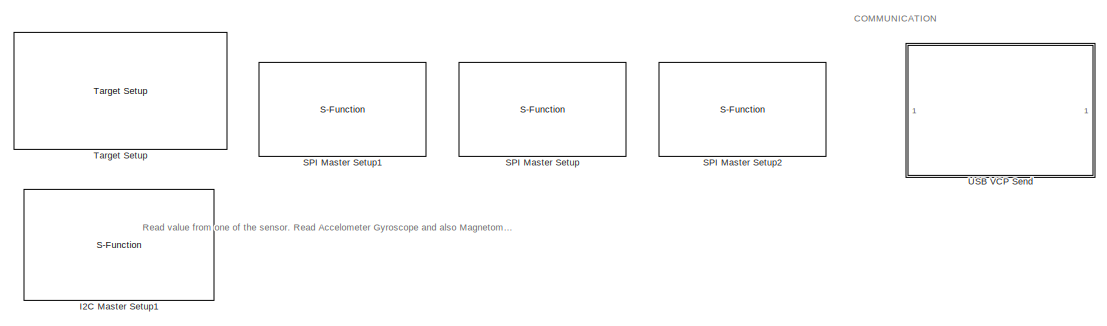
[diagram: root canvas - part 1/4, top center region]
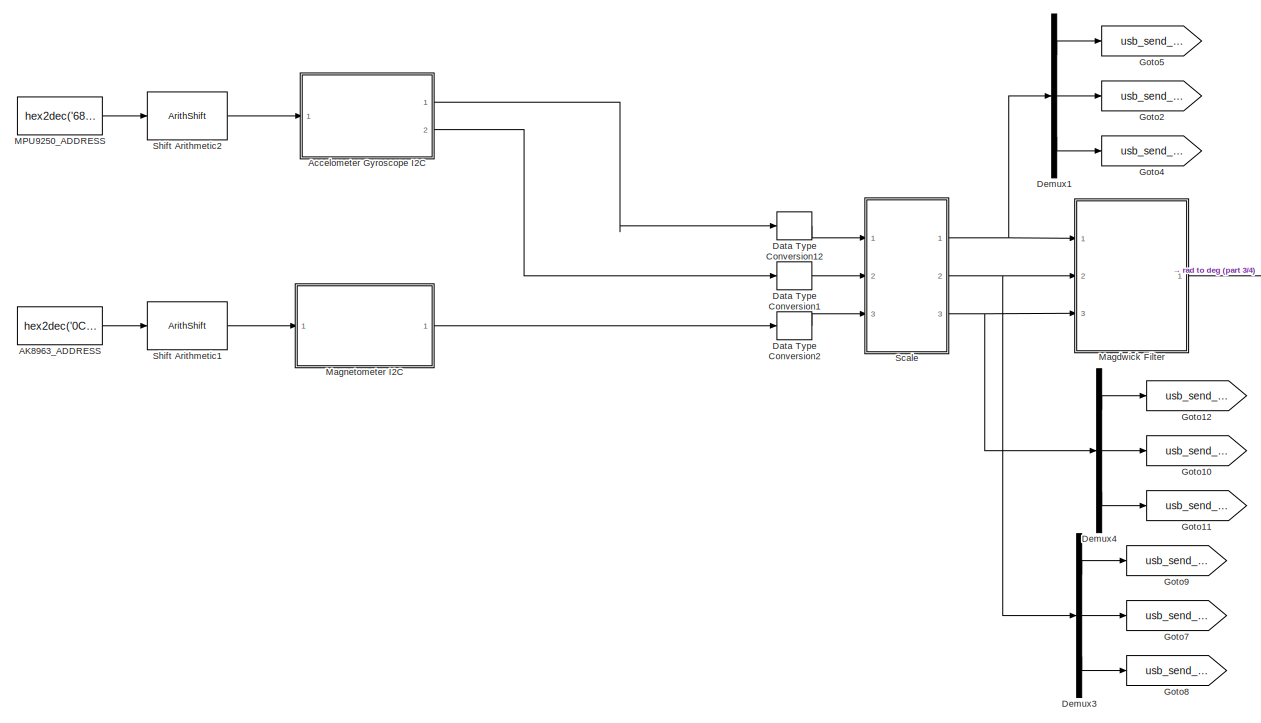
[diagram: root canvas - part 2/4, full width, middle band]
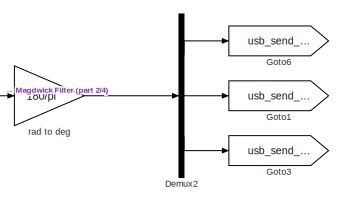
[diagram: root canvas - part 3/4, middle right region]
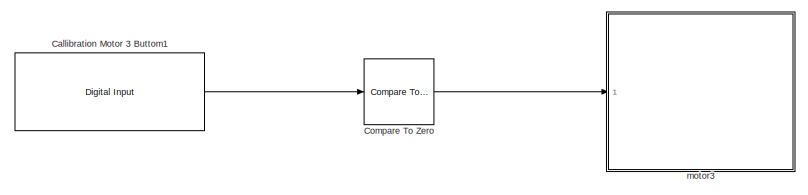
[diagram: root canvas - part 4/4, bottom left region]
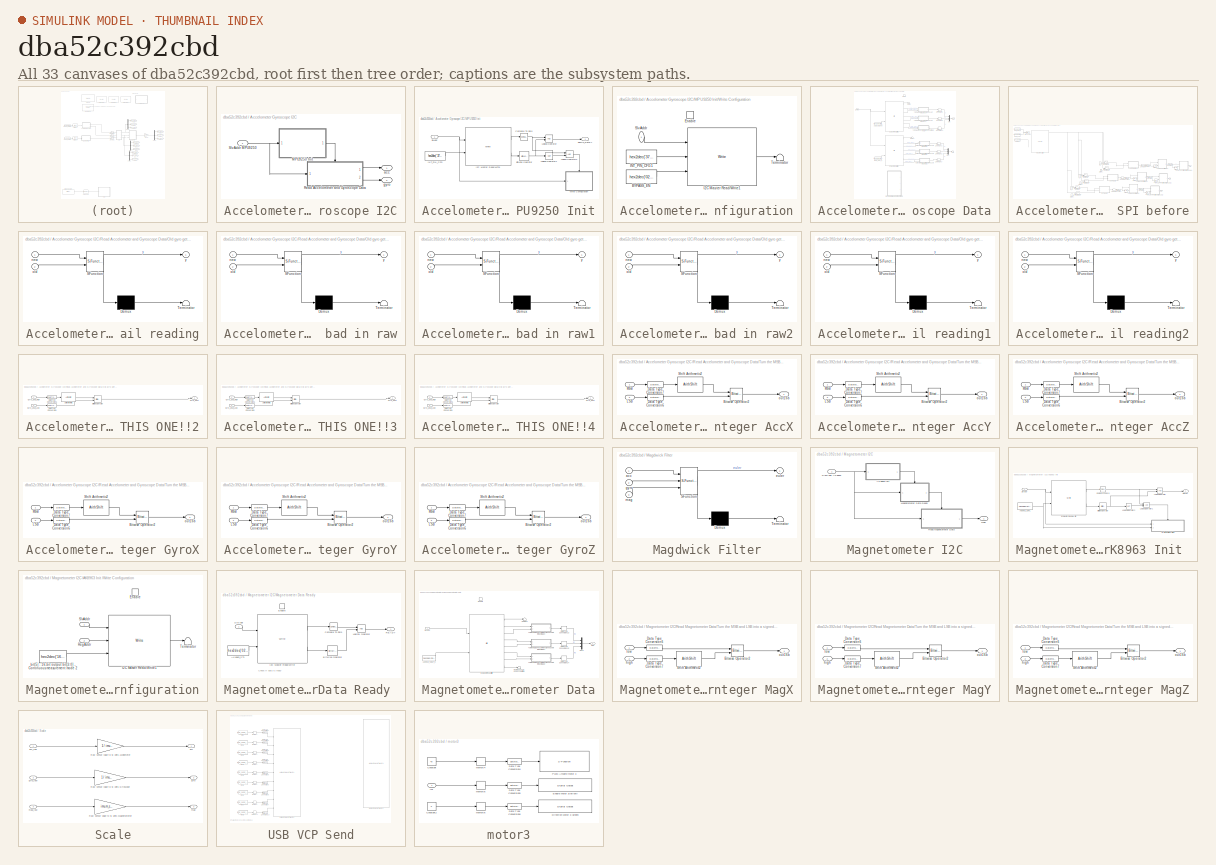
[diagram: thumbnail index - all 33 canvases of the model, root first then tree order]
MODEL slx_dba52c392cbd
KIND model
CONFIG AbsTol = auto
CONFIG EnableMultiTasking = off
CONFIG FixedStep = auto
CONFIG MaxStep = auto
CONFIG MinStep = auto
CONFIG PreLoadFcn = waijung.modelPreload; % Required for working with Waijung Blockset. Do not remove.
CONFIG RelTol = 1e-3
CONFIG SampleTimeConstraint = Unconstrained
CONFIG Solver = FixedStepAuto
CONFIG SolverName = FixedStepAuto
CONFIG StartTime = 0.0
CONFIG StopTime = 10.0
BLOCK [Constant]  AK8963_ADDRESS
  OutDataTypeStr = uint8
  SampleTime = 0.002
  Value = hex2dec('0C')
BLOCK [Constant]  MPU9250_ADDRESS
  OutDataTypeStr = uint8
  SampleTime = 0.002
  Value = hex2dec('68')
BLOCK [SubSystem] Accelometer Gyroscope I2C
  Ports = [1, 2]
  RequestExecContextInheritance = off
  Variant = off
BLOCK [SubSystem] Accelometer Gyroscope I2C/MPU9250 Init
  Ports = [1, 1]
  RequestExecContextInheritance = off
  Variant = off
BLOCK [Reference] Accelometer Gyroscope I2C/MPU9250 Init/Bitwise Operator  REF=simulink/Logic and Bit
Operations/Bitwise
Operator
  Ports = [1, 1]
  SourceBlock = simulink/Logic and Bit\nOperations/Bitwise\nOperator
  SourceType = Bitwise Operator
BLOCK [Reference] Accelometer Gyroscope I2C/MPU9250 Init/Compare To Zero  REF=simulink/Logic and Bit
Operations/Compare
To Zero
  Ports = [1, 1]
  SourceBlock = simulink/Logic and Bit\nOperations/Compare\nTo Zero
  SourceType = Compare To Zero
BLOCK [Reference] Accelometer Gyroscope I2C/MPU9250 Init/I2C Master Read//Write  REF=stm32f4_i2c_lib/I2C Master Read//Write
  Ports = [2, 2]
  SourceBlock = stm32f4_i2c_lib/I2C Master Read//Write
  SourceType = stm32f4_i2c
BLOCK [Constant] Accelometer Gyroscope I2C/MPU9250 Init/INT_PIN_CFG
  OutDataTypeStr = uint8
  SampleTime = -1
  Value = hex2dec('37')
BLOCK [Logic] Accelometer Gyroscope I2C/MPU9250 Init/Logical Operator
  AllPortsSameDT = off
  OutDataTypeStr = boolean
  Ports = [2, 1]
BLOCK [Logic] Accelometer Gyroscope I2C/MPU9250 Init/Logical Operator1
  AllPortsSameDT = off
  Operator = NOT
  OutDataTypeStr = boolean
  Ports = [1, 1]
BLOCK [Logic] Accelometer Gyroscope I2C/MPU9250 Init/Logical Operator2
  AllPortsSameDT = off
  OutDataTypeStr = boolean
  Ports = [2, 1]
BLOCK [Outport] Accelometer Gyroscope I2C/MPU9250 Init/SETUP_READY
  IconDisplay = Port number
BLOCK [Inport] Accelometer Gyroscope I2C/MPU9250 Init/SlvAddr
  IconDisplay = Port number
BLOCK [SubSystem] Accelometer Gyroscope I2C/MPU9250 Init/Write Configuration
  Ports = [1, 0, 1]
  RequestExecContextInheritance = off
  Variant = off
BLOCK [Constant] Accelometer Gyroscope I2C/MPU9250 Init/Write Configuration/BYPASS_EN
  OutDataTypeStr = uint8
  SampleTime = -1
  Value = hex2dec('02')
BLOCK [EnablePort] Accelometer Gyroscope I2C/MPU9250 Init/Write Configuration/Enable
  Ports = []
BLOCK [Reference] Accelometer Gyroscope I2C/MPU9250 Init/Write Configuration/I2C Master Read//Write1  REF=stm32f4_i2c_lib/I2C Master Read//Write
  Ports = [3, 1]
  SourceBlock = stm32f4_i2c_lib/I2C Master Read//Write
  SourceType = stm32f4_i2c
BLOCK [Constant] Accelometer Gyroscope I2C/MPU9250 Init/Write Configuration/INT_PIN_CFG1
  OutDataTypeStr = uint8
  SampleTime = -1
  Value = hex2dec('37')
BLOCK [Inport] Accelometer Gyroscope I2C/MPU9250 Init/Write Configuration/SlvAddr
  IconDisplay = Port number
BLOCK [Terminator] Accelometer Gyroscope I2C/MPU9250 Init/Write Configuration/Terminator
BLOCK [SubSystem] Accelometer Gyroscope I2C/Read Accelometer and Gyroscope Data
  Ports = [1, 2, 1]
  RequestExecContextInheritance = off
  Variant = off
BLOCK [Constant] Accelometer Gyroscope I2C/Read Accelometer and Gyroscope Data/ACCEL_XOUT_H
  OutDataTypeStr = uint8
  SampleTime = -1
  Value = hex2dec('3B')
BLOCK [Terminator] Accelometer Gyroscope I2C/Read Accelometer and Gyroscope Data/DUMMY
BLOCK [Terminator] Accelometer Gyroscope I2C/Read Accelometer and Gyroscope Data/DUMMY2
BLOCK [DataTypeConversion] Accelometer Gyroscope I2C/Read Accelometer and Gyroscope Data/Data Type Conversion1
  OutDataTypeStr = int16
  RndMeth = Floor
  SaturateOnIntegerOverflow = off
BLOCK [DataTypeConversion] Accelometer Gyroscope I2C/Read Accelometer and Gyroscope Data/Data Type Conversion12
  OutDataTypeStr = int16
  RndMeth = Floor
  SaturateOnIntegerOverflow = off
BLOCK [DataTypeConversion] Accelometer Gyroscope I2C/Read Accelometer and Gyroscope Data/Data Type Conversion16
  OutDataTypeStr = int16
  RndMeth = Floor
  SaturateOnIntegerOverflow = off
BLOCK [DataTypeConversion] Accelometer Gyroscope I2C/Read Accelometer and Gyroscope Data/Data Type Conversion17
  OutDataTypeStr = int16
  RndMeth = Floor
  SaturateOnIntegerOverflow = off
BLOCK [DataTypeConversion] Accelometer Gyroscope I2C/Read Accelometer and Gyroscope Data/Data Type Conversion18
  OutDataTypeStr = int16
  RndMeth = Floor
  SaturateOnIntegerOverflow = off
BLOCK [DataTypeConversion] Accelometer Gyroscope I2C/Read Accelometer and Gyroscope Data/Data Type Conversion6
  OutDataTypeStr = int16
  RndMeth = Floor
  SaturateOnIntegerOverflow = off
BLOCK [EnablePort] Accelometer Gyroscope I2C/Read Accelometer and Gyroscope Data/Enable
  Ports = []
BLOCK [Constant] Accelometer Gyroscope I2C/Read Accelometer and Gyroscope Data/GYRO_XOUT_H
  OutDataTypeStr = uint8
  SampleTime = -1
  Value = hex2dec('43')
BLOCK [Reference] Accelometer Gyroscope I2C/Read Accelometer and Gyroscope Data/I2C Master Read//Write1  REF=stm32f4_i2c_lib/I2C Master Read//Write
  Ports = [2, 7]
  SourceBlock = stm32f4_i2c_lib/I2C Master Read//Write
  SourceType = stm32f4_i2c
BLOCK [Reference] Accelometer Gyroscope I2C/Read Accelometer and Gyroscope Data/I2C Master Read//Write2  REF=stm32f4_i2c_lib/I2C Master Read//Write
  Ports = [2, 7]
  SourceBlock = stm32f4_i2c_lib/I2C Master Read//Write
  SourceType = stm32f4_i2c
BLOCK [Mux] Accelometer Gyroscope I2C/Read Accelometer and Gyroscope Data/Mux
  DisplayOption = bar
  Inputs = 3
  Ports = [3, 1]
BLOCK [Mux] Accelometer Gyroscope I2C/Read Accelometer and Gyroscope Data/Mux1
  DisplayOption = bar
  Inputs = 3
  Ports = [3, 1]
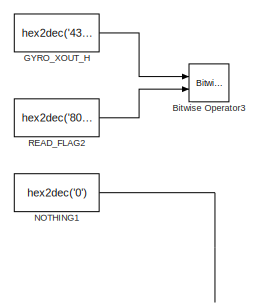
[diagram: Accelometer Gyroscope I2C/Read Accelometer and Gyroscope Data/Old gyro get data Used during SPI before - part 1/4, top left region]
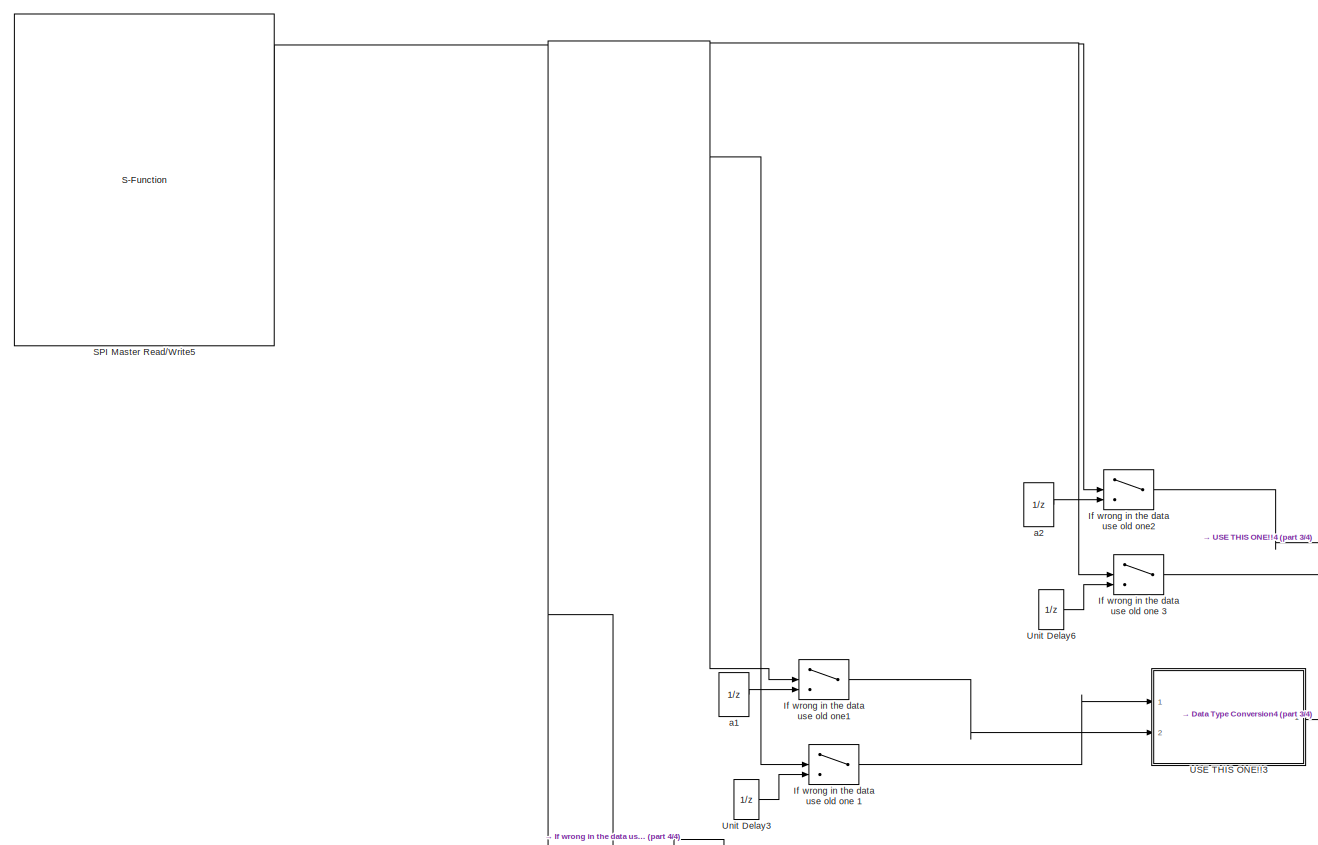
[diagram: Accelometer Gyroscope I2C/Read Accelometer and Gyroscope Data/Old gyro get data Used during SPI before - part 2/4, center side, full height]
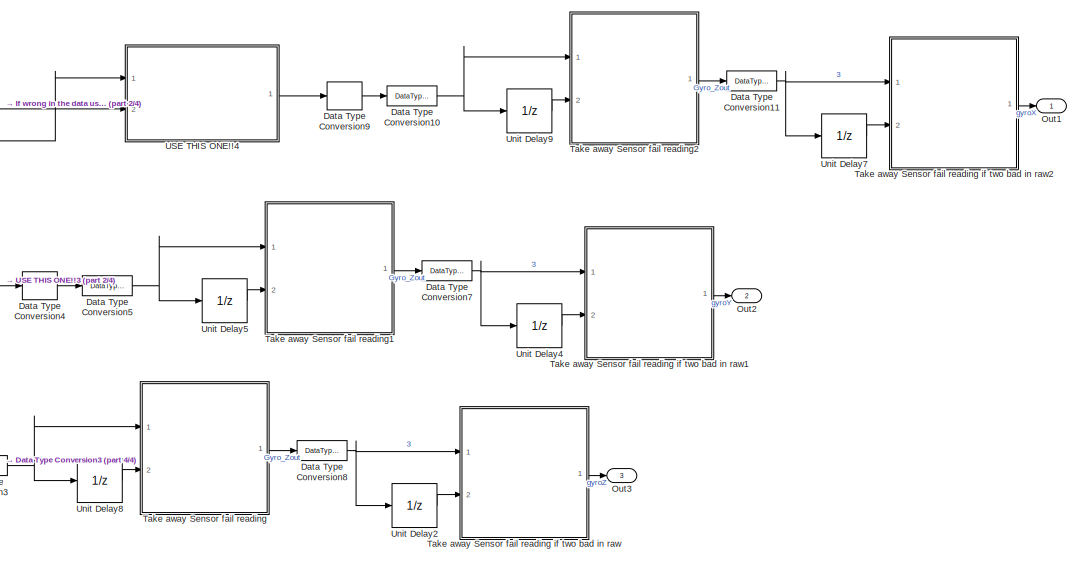
[diagram: Accelometer Gyroscope I2C/Read Accelometer and Gyroscope Data/Old gyro get data Used during SPI before - part 3/4, bottom right region]
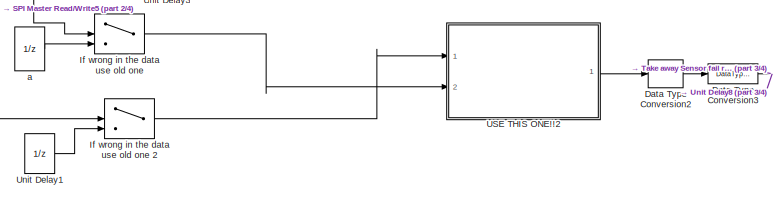
[diagram: Accelometer Gyroscope I2C/Read Accelometer and Gyroscope Data/Old gyro get data Used during SPI before - part 4/4, bottom center region]
BLOCK [SubSystem] Accelometer Gyroscope I2C/Read Accelometer and Gyroscope Data/Old gyro get data Used during SPI before
  Commented = on
  Ports = [0, 3]
  RequestExecContextInheritance = off
  Variant = off
BLOCK [UnitDelay] Accelometer Gyroscope I2C/Read Accelometer and Gyroscope Data/Old gyro get data Used during SPI before/ a
  Commented = on
  InputProcessing = Elements as channels (sample based)
  SampleTime = -1
BLOCK [UnitDelay] Accelometer Gyroscope I2C/Read Accelometer and Gyroscope Data/Old gyro get data Used during SPI before/ a1
  Commented = on
  InputProcessing = Elements as channels (sample based)
  SampleTime = -1
BLOCK [UnitDelay] Accelometer Gyroscope I2C/Read Accelometer and Gyroscope Data/Old gyro get data Used during SPI before/ a2
  Commented = on
  InputProcessing = Elements as channels (sample based)
  SampleTime = -1
BLOCK [Reference] Accelometer Gyroscope I2C/Read Accelometer and Gyroscope Data/Old gyro get data Used during SPI before/Bitwise Operator3  REF=simulink/Logic and Bit
Operations/Bitwise
Operator
  Commented = on
  Ports = [2, 1]
  SourceBlock = simulink/Logic and Bit\nOperations/Bitwise\nOperator
  SourceType = Bitwise Operator
BLOCK [DataTypeConversion] Accelometer Gyroscope I2C/Read Accelometer and Gyroscope Data/Old gyro get data Used during SPI before/Data Type Conversion10
  Commented = on
  RndMeth = Floor
  SaturateOnIntegerOverflow = off
BLOCK [DataTypeConversion] Accelometer Gyroscope I2C/Read Accelometer and Gyroscope Data/Old gyro get data Used during SPI before/Data Type Conversion11
  Commented = on
  RndMeth = Floor
  SaturateOnIntegerOverflow = off
BLOCK [DataTypeConversion] Accelometer Gyroscope I2C/Read Accelometer and Gyroscope Data/Old gyro get data Used during SPI before/Data Type Conversion2
  Commented = on
  OutDataTypeStr = int16
  RndMeth = Floor
  SaturateOnIntegerOverflow = off
BLOCK [DataTypeConversion] Accelometer Gyroscope I2C/Read Accelometer and Gyroscope Data/Old gyro get data Used during SPI before/Data Type Conversion3
  Commented = on
  RndMeth = Floor
  SaturateOnIntegerOverflow = off
BLOCK [DataTypeConversion] Accelometer Gyroscope I2C/Read Accelometer and Gyroscope Data/Old gyro get data Used during SPI before/Data Type Conversion4
  Commented = on
  OutDataTypeStr = int16
  RndMeth = Floor
  SaturateOnIntegerOverflow = off
BLOCK [DataTypeConversion] Accelometer Gyroscope I2C/Read Accelometer and Gyroscope Data/Old gyro get data Used during SPI before/Data Type Conversion5
  Commented = on
  RndMeth = Floor
  SaturateOnIntegerOverflow = off
BLOCK [DataTypeConversion] Accelometer Gyroscope I2C/Read Accelometer and Gyroscope Data/Old gyro get data Used during SPI before/Data Type Conversion7
  Commented = on
  RndMeth = Floor
  SaturateOnIntegerOverflow = off
BLOCK [DataTypeConversion] Accelometer Gyroscope I2C/Read Accelometer and Gyroscope Data/Old gyro get data Used during SPI before/Data Type Conversion8
  Commented = on
  RndMeth = Floor
  SaturateOnIntegerOverflow = off
BLOCK [DataTypeConversion] Accelometer Gyroscope I2C/Read Accelometer and Gyroscope Data/Old gyro get data Used during SPI before/Data Type Conversion9
  Commented = on
  OutDataTypeStr = int16
  RndMeth = Floor
  SaturateOnIntegerOverflow = off
BLOCK [Constant] Accelometer Gyroscope I2C/Read Accelometer and Gyroscope Data/Old gyro get data Used during SPI before/GYRO_XOUT_H
  Commented = on
  OutDataTypeStr = uint8
  Value = hex2dec('43')
BLOCK [Switch] Accelometer Gyroscope I2C/Read Accelometer and Gyroscope Data/Old gyro get data Used during SPI before/If wrong in the data use old one
  Commented = on
  Criteria = u2 ~= 0
  InputSameDT = off
  SaturateOnIntegerOverflow = off
BLOCK [Switch] Accelometer Gyroscope I2C/Read Accelometer and Gyroscope Data/Old gyro get data Used during SPI before/If wrong in the data use old one 1
  Commented = on
  Criteria = u2 ~= 0
  InputSameDT = off
  SaturateOnIntegerOverflow = off
BLOCK [Switch] Accelometer Gyroscope I2C/Read Accelometer and Gyroscope Data/Old gyro get data Used during SPI before/If wrong in the data use old one 2
  Commented = on
  Criteria = u2 ~= 0
  InputSameDT = off
  SaturateOnIntegerOverflow = off
BLOCK [Switch] Accelometer Gyroscope I2C/Read Accelometer and Gyroscope Data/Old gyro get data Used during SPI before/If wrong in the data use old one 3
  Commented = on
  Criteria = u2 ~= 0
  InputSameDT = off
  SaturateOnIntegerOverflow = off
BLOCK [Switch] Accelometer Gyroscope I2C/Read Accelometer and Gyroscope Data/Old gyro get data Used during SPI before/If wrong in the data use old one1
  Commented = on
  Criteria = u2 ~= 0
  InputSameDT = off
  SaturateOnIntegerOverflow = off
BLOCK [Switch] Accelometer Gyroscope I2C/Read Accelometer and Gyroscope Data/Old gyro get data Used during SPI before/If wrong in the data use old one2
  Commented = on
  Criteria = u2 ~= 0
  InputSameDT = off
  SaturateOnIntegerOverflow = off
BLOCK [Constant] Accelometer Gyroscope I2C/Read Accelometer and Gyroscope Data/Old gyro get data Used during SPI before/NOTHING1
  Commented = on
  OutDataTypeStr = uint8
  Value = hex2dec('0')
BLOCK [Outport] Accelometer Gyroscope I2C/Read Accelometer and Gyroscope Data/Old gyro get data Used during SPI before/Out1
  IconDisplay = Port number
BLOCK [Outport] Accelometer Gyroscope I2C/Read Accelometer and Gyroscope Data/Old gyro get data Used during SPI before/Out2
  IconDisplay = Port number
  Port = 2
BLOCK [Outport] Accelometer Gyroscope I2C/Read Accelometer and Gyroscope Data/Old gyro get data Used during SPI before/Out3
  IconDisplay = Port number
  Port = 3
BLOCK [Constant] Accelometer Gyroscope I2C/Read Accelometer and Gyroscope Data/Old gyro get data Used during SPI before/READ_FLAG2
  Commented = on
  OutDataTypeStr = uint8
  Value = hex2dec('80')
BLOCK [S-Function] Accelometer Gyroscope I2C/Read Accelometer and Gyroscope Data/Old gyro get data Used during SPI before/SPI Master Read//Write5
  Commented = on
  EnableBusSupport = off
  FunctionName = stm32f4_spimaster
  Parameters = mode,configuration,module,datacount,inputtypearray,outputtypearray,confstr,sampletime,sampletimestr,blockid
  Ports = [0, 1]
  SFcnIsStateOwnerBlock = off
  SFunctionDeploymentMode = off
BLOCK [SubSystem] Accelometer Gyroscope I2C/Read Accelometer and Gyroscope Data/Old gyro get data Used during SPI before/Take away Sensor fail reading
  Commented = on
  ErrorFcn = Stateflow.Translate.translate
  PermitHierarchicalResolution = ExplicitOnly
  Ports = [2, 1]
  RequestExecContextInheritance = off
  SFBlockType = MATLAB Function
  TreatAsAtomicUnit = on
  Variant = off
BLOCK [SubSystem] Accelometer Gyroscope I2C/Read Accelometer and Gyroscope Data/Old gyro get data Used during SPI before/Take away Sensor fail reading if two bad in raw
  Commented = on
  ErrorFcn = Stateflow.Translate.translate
  PermitHierarchicalResolution = ExplicitOnly
  Ports = [2, 1]
  RequestExecContextInheritance = off
  SFBlockType = MATLAB Function
  TreatAsAtomicUnit = on
  Variant = off
BLOCK [Demux] Accelometer Gyroscope I2C/Read Accelometer and Gyroscope Data/Old gyro get data Used during SPI before/Take away Sensor fail reading if two bad in raw/ Demux 
  Outputs = 1
  Ports = [1, 1]
BLOCK [S-Function] Accelometer Gyroscope I2C/Read Accelometer and Gyroscope Data/Old gyro get data Used during SPI before/Take away Sensor fail reading if two bad in raw/ SFunction 
  EnableBusSupport = on
  FunctionName = sf_sfun
  PortCounts = [2 2]
  Ports = [2, 2]
  SFcnIsStateOwnerBlock = off
  SFunctionDeploymentMode = off
  Tag = Stateflow S-Function Send_IMU_value_I2C 29
BLOCK [Terminator] Accelometer Gyroscope I2C/Read Accelometer and Gyroscope Data/Old gyro get data Used during SPI before/Take away Sensor fail reading if two bad in raw/ Terminator 
BLOCK [Inport] Accelometer Gyroscope I2C/Read Accelometer and Gyroscope Data/Old gyro get data Used during SPI before/Take away Sensor fail reading if two bad in raw/new
  IconDisplay = Port number
BLOCK [Inport] Accelometer Gyroscope I2C/Read Accelometer and Gyroscope Data/Old gyro get data Used during SPI before/Take away Sensor fail reading if two bad in raw/old
  IconDisplay = Port number
  Port = 2
BLOCK [Outport] Accelometer Gyroscope I2C/Read Accelometer and Gyroscope Data/Old gyro get data Used during SPI before/Take away Sensor fail reading if two bad in raw/y
  IconDisplay = Port number
BLOCK [SubSystem] Accelometer Gyroscope I2C/Read Accelometer and Gyroscope Data/Old gyro get data Used during SPI before/Take away Sensor fail reading if two bad in raw1
  Commented = on
  ErrorFcn = Stateflow.Translate.translate
  PermitHierarchicalResolution = ExplicitOnly
  Ports = [2, 1]
  RequestExecContextInheritance = off
  SFBlockType = MATLAB Function
  TreatAsAtomicUnit = on
  Variant = off
BLOCK [Demux] Accelometer Gyroscope I2C/Read Accelometer and Gyroscope Data/Old gyro get data Used during SPI before/Take away Sensor fail reading if two bad in raw1/ Demux 
  Outputs = 1
  Ports = [1, 1]
BLOCK [S-Function] Accelometer Gyroscope I2C/Read Accelometer and Gyroscope Data/Old gyro get data Used during SPI before/Take away Sensor fail reading if two bad in raw1/ SFunction 
  EnableBusSupport = on
  FunctionName = sf_sfun
  PortCounts = [2 2]
  Ports = [2, 2]
  SFcnIsStateOwnerBlock = off
  SFunctionDeploymentMode = off
  Tag = Stateflow S-Function Send_IMU_value_I2C 30
BLOCK [Terminator] Accelometer Gyroscope I2C/Read Accelometer and Gyroscope Data/Old gyro get data Used during SPI before/Take away Sensor fail reading if two bad in raw1/ Terminator 
BLOCK [Inport] Accelometer Gyroscope I2C/Read Accelometer and Gyroscope Data/Old gyro get data Used during SPI before/Take away Sensor fail reading if two bad in raw1/new
  IconDisplay = Port number
BLOCK [Inport] Accelometer Gyroscope I2C/Read Accelometer and Gyroscope Data/Old gyro get data Used during SPI before/Take away Sensor fail reading if two bad in raw1/old
  IconDisplay = Port number
  Port = 2
BLOCK [Outport] Accelometer Gyroscope I2C/Read Accelometer and Gyroscope Data/Old gyro get data Used during SPI before/Take away Sensor fail reading if two bad in raw1/y
  IconDisplay = Port number
BLOCK [SubSystem] Accelometer Gyroscope I2C/Read Accelometer and Gyroscope Data/Old gyro get data Used during SPI before/Take away Sensor fail reading if two bad in raw2
  Commented = on
  ErrorFcn = Stateflow.Translate.translate
  PermitHierarchicalResolution = ExplicitOnly
  Ports = [2, 1]
  RequestExecContextInheritance = off
  SFBlockType = MATLAB Function
  TreatAsAtomicUnit = on
  Variant = off
BLOCK [Demux] Accelometer Gyroscope I2C/Read Accelometer and Gyroscope Data/Old gyro get data Used during SPI before/Take away Sensor fail reading if two bad in raw2/ Demux 
  Outputs = 1
  Ports = [1, 1]
BLOCK [S-Function] Accelometer Gyroscope I2C/Read Accelometer and Gyroscope Data/Old gyro get data Used during SPI before/Take away Sensor fail reading if two bad in raw2/ SFunction 
  EnableBusSupport = on
  FunctionName = sf_sfun
  PortCounts = [2 2]
  Ports = [2, 2]
  SFcnIsStateOwnerBlock = off
  SFunctionDeploymentMode = off
  Tag = Stateflow S-Function Send_IMU_value_I2C 32
BLOCK [Terminator] Accelometer Gyroscope I2C/Read Accelometer and Gyroscope Data/Old gyro get data Used during SPI before/Take away Sensor fail reading if two bad in raw2/ Terminator 
BLOCK [Inport] Accelometer Gyroscope I2C/Read Accelometer and Gyroscope Data/Old gyro get data Used during SPI before/Take away Sensor fail reading if two bad in raw2/new
  IconDisplay = Port number
BLOCK [Inport] Accelometer Gyroscope I2C/Read Accelometer and Gyroscope Data/Old gyro get data Used during SPI before/Take away Sensor fail reading if two bad in raw2/old
  IconDisplay = Port number
  Port = 2
BLOCK [Outport] Accelometer Gyroscope I2C/Read Accelometer and Gyroscope Data/Old gyro get data Used during SPI before/Take away Sensor fail reading if two bad in raw2/y
  IconDisplay = Port number
BLOCK [Demux] Accelometer Gyroscope I2C/Read Accelometer and Gyroscope Data/Old gyro get data Used during SPI before/Take away Sensor fail reading/ Demux 
  Outputs = 1
  Ports = [1, 1]
BLOCK [S-Function] Accelometer Gyroscope I2C/Read Accelometer and Gyroscope Data/Old gyro get data Used during SPI before/Take away Sensor fail reading/ SFunction 
  EnableBusSupport = on
  FunctionName = sf_sfun
  PortCounts = [2 2]
  Ports = [2, 2]
  SFcnIsStateOwnerBlock = off
  SFunctionDeploymentMode = off
  Tag = Stateflow S-Function Send_IMU_value_I2C 28
BLOCK [Terminator] Accelometer Gyroscope I2C/Read Accelometer and Gyroscope Data/Old gyro get data Used during SPI before/Take away Sensor fail reading/ Terminator 
BLOCK [Inport] Accelometer Gyroscope I2C/Read Accelometer and Gyroscope Data/Old gyro get data Used during SPI before/Take away Sensor fail reading/new
  IconDisplay = Port number
BLOCK [Inport] Accelometer Gyroscope I2C/Read Accelometer and Gyroscope Data/Old gyro get data Used during SPI before/Take away Sensor fail reading/old
  IconDisplay = Port number
  Port = 2
BLOCK [Outport] Accelometer Gyroscope I2C/Read Accelometer and Gyroscope Data/Old gyro get data Used during SPI before/Take away Sensor fail reading/y
  IconDisplay = Port number
BLOCK [SubSystem] Accelometer Gyroscope I2C/Read Accelometer and Gyroscope Data/Old gyro get data Used during SPI before/Take away Sensor fail reading1
  Commented = on
  ErrorFcn = Stateflow.Translate.translate
  PermitHierarchicalResolution = ExplicitOnly
  Ports = [2, 1]
  RequestExecContextInheritance = off
  SFBlockType = MATLAB Function
  TreatAsAtomicUnit = on
  Variant = off
BLOCK [Demux] Accelometer Gyroscope I2C/Read Accelometer and Gyroscope Data/Old gyro get data Used during SPI before/Take away Sensor fail reading1/ Demux 
  Outputs = 1
  Ports = [1, 1]
BLOCK [S-Function] Accelometer Gyroscope I2C/Read Accelometer and Gyroscope Data/Old gyro get data Used during SPI before/Take away Sensor fail reading1/ SFunction 
  EnableBusSupport = on
  FunctionName = sf_sfun
  PortCounts = [2 2]
  Ports = [2, 2]
  SFcnIsStateOwnerBlock = off
  SFunctionDeploymentMode = off
  Tag = Stateflow S-Function Send_IMU_value_I2C 31
BLOCK [Terminator] Accelometer Gyroscope I2C/Read Accelometer and Gyroscope Data/Old gyro get data Used during SPI before/Take away Sensor fail reading1/ Terminator 
BLOCK [Inport] Accelometer Gyroscope I2C/Read Accelometer and Gyroscope Data/Old gyro get data Used during SPI before/Take away Sensor fail reading1/new
  IconDisplay = Port number
BLOCK [Inport] Accelometer Gyroscope I2C/Read Accelometer and Gyroscope Data/Old gyro get data Used during SPI before/Take away Sensor fail reading1/old
  IconDisplay = Port number
  Port = 2
BLOCK [Outport] Accelometer Gyroscope I2C/Read Accelometer and Gyroscope Data/Old gyro get data Used during SPI before/Take away Sensor fail reading1/y
  IconDisplay = Port number
BLOCK [SubSystem] Accelometer Gyroscope I2C/Read Accelometer and Gyroscope Data/Old gyro get data Used during SPI before/Take away Sensor fail reading2
  Commented = on
  ErrorFcn = Stateflow.Translate.translate
  PermitHierarchicalResolution = ExplicitOnly
  Ports = [2, 1]
  RequestExecContextInheritance = off
  SFBlockType = MATLAB Function
  TreatAsAtomicUnit = on
  Variant = off
BLOCK [Demux] Accelometer Gyroscope I2C/Read Accelometer and Gyroscope Data/Old gyro get data Used during SPI before/Take away Sensor fail reading2/ Demux 
  Outputs = 1
  Ports = [1, 1]
BLOCK [S-Function] Accelometer Gyroscope I2C/Read Accelometer and Gyroscope Data/Old gyro get data Used during SPI before/Take away Sensor fail reading2/ SFunction 
  EnableBusSupport = on
  FunctionName = sf_sfun
  PortCounts = [2 2]
  Ports = [2, 2]
  SFcnIsStateOwnerBlock = off
  SFunctionDeploymentMode = off
  Tag = Stateflow S-Function Send_IMU_value_I2C 33
BLOCK [Terminator] Accelometer Gyroscope I2C/Read Accelometer and Gyroscope Data/Old gyro get data Used during SPI before/Take away Sensor fail reading2/ Terminator 
BLOCK [Inport] Accelometer Gyroscope I2C/Read Accelometer and Gyroscope Data/Old gyro get data Used during SPI before/Take away Sensor fail reading2/new
  IconDisplay = Port number
BLOCK [Inport] Accelometer Gyroscope I2C/Read Accelometer and Gyroscope Data/Old gyro get data Used during SPI before/Take away Sensor fail reading2/old
  IconDisplay = Port number
  Port = 2
BLOCK [Outport] Accelometer Gyroscope I2C/Read Accelometer and Gyroscope Data/Old gyro get data Used during SPI before/Take away Sensor fail reading2/y
  IconDisplay = Port number
BLOCK [SubSystem] Accelometer Gyroscope I2C/Read Accelometer and Gyroscope Data/Old gyro get data Used during SPI before/USE THIS ONE!!2
  Commented = on
  Ports = [2, 1]
  RequestExecContextInheritance = off
  Variant = off
BLOCK [Reference] Accelometer Gyroscope I2C/Read Accelometer and Gyroscope Data/Old gyro get data Used during SPI before/USE THIS ONE!!2/Bitwise Operator  REF=simulink/Logic and Bit
Operations/Bitwise
Operator
  Ports = [2, 1]
  SourceBlock = simulink/Logic and Bit\nOperations/Bitwise\nOperator
  SourceType = Bitwise Operator
BLOCK [DataTypeConversion] Accelometer Gyroscope I2C/Read Accelometer and Gyroscope Data/Old gyro get data Used during SPI before/USE THIS ONE!!2/Data Type Conversion
  OutDataTypeStr = uint16
  RndMeth = Floor
  SaturateOnIntegerOverflow = off
BLOCK [DataTypeConversion] Accelometer Gyroscope I2C/Read Accelometer and Gyroscope Data/Old gyro get data Used during SPI before/USE THIS ONE!!2/Data Type Conversion1
  OutDataTypeStr = uint16
  RndMeth = Floor
  SaturateOnIntegerOverflow = off
BLOCK [Outport] Accelometer Gyroscope I2C/Read Accelometer and Gyroscope Data/Old gyro get data Used during SPI before/USE THIS ONE!!2/Gyro_Zout
  IconDisplay = Port number
BLOCK [Inport] Accelometer Gyroscope I2C/Read Accelometer and Gyroscope Data/Old gyro get data Used during SPI before/USE THIS ONE!!2/Gyro_Zout_High 
  IconDisplay = Port number
BLOCK [Inport] Accelometer Gyroscope I2C/Read Accelometer and Gyroscope Data/Old gyro get data Used during SPI before/USE THIS ONE!!2/Gyro_Zout_Low
  IconDisplay = Port number
  Port = 2
BLOCK [ArithShift] Accelometer Gyroscope I2C/Read Accelometer and Gyroscope Data/Old gyro get data Used during SPI before/USE THIS ONE!!2/Shift Arithmetic
  BitShiftNumber = -8
  InputPortMap = u0
  Ports = [1, 1]
BLOCK [SubSystem] Accelometer Gyroscope I2C/Read Accelometer and Gyroscope Data/Old gyro get data Used during SPI before/USE THIS ONE!!3
  Commented = on
  Ports = [2, 1]
  RequestExecContextInheritance = off
  Variant = off
BLOCK [Reference] Accelometer Gyroscope I2C/Read Accelometer and Gyroscope Data/Old gyro get data Used during SPI before/USE THIS ONE!!3/Bitwise Operator  REF=simulink/Logic and Bit
Operations/Bitwise
Operator
  Ports = [2, 1]
  SourceBlock = simulink/Logic and Bit\nOperations/Bitwise\nOperator
  SourceType = Bitwise Operator
BLOCK [DataTypeConversion] Accelometer Gyroscope I2C/Read Accelometer and Gyroscope Data/Old gyro get data Used during SPI before/USE THIS ONE!!3/Data Type Conversion
  OutDataTypeStr = uint16
  RndMeth = Floor
  SaturateOnIntegerOverflow = off
BLOCK [DataTypeConversion] Accelometer Gyroscope I2C/Read Accelometer and Gyroscope Data/Old gyro get data Used during SPI before/USE THIS ONE!!3/Data Type Conversion1
  OutDataTypeStr = uint16
  RndMeth = Floor
  SaturateOnIntegerOverflow = off
BLOCK [Outport] Accelometer Gyroscope I2C/Read Accelometer and Gyroscope Data/Old gyro get data Used during SPI before/USE THIS ONE!!3/Gyro_Zout
  IconDisplay = Port number
BLOCK [Inport] Accelometer Gyroscope I2C/Read Accelometer and Gyroscope Data/Old gyro get data Used during SPI before/USE THIS ONE!!3/Gyro_Zout_High 
  IconDisplay = Port number
BLOCK [Inport] Accelometer Gyroscope I2C/Read Accelometer and Gyroscope Data/Old gyro get data Used during SPI before/USE THIS ONE!!3/Gyro_Zout_Low
  IconDisplay = Port number
  Port = 2
BLOCK [ArithShift] Accelometer Gyroscope I2C/Read Accelometer and Gyroscope Data/Old gyro get data Used during SPI before/USE THIS ONE!!3/Shift Arithmetic
  BitShiftNumber = -8
  InputPortMap = u0
  Ports = [1, 1]
BLOCK [SubSystem] Accelometer Gyroscope I2C/Read Accelometer and Gyroscope Data/Old gyro get data Used during SPI before/USE THIS ONE!!4
  Commented = on
  Ports = [2, 1]
  RequestExecContextInheritance = off
  Variant = off
BLOCK [Reference] Accelometer Gyroscope I2C/Read Accelometer and Gyroscope Data/Old gyro get data Used during SPI before/USE THIS ONE!!4/Bitwise Operator  REF=simulink/Logic and Bit
Operations/Bitwise
Operator
  Ports = [2, 1]
  SourceBlock = simulink/Logic and Bit\nOperations/Bitwise\nOperator
  SourceType = Bitwise Operator
BLOCK [DataTypeConversion] Accelometer Gyroscope I2C/Read Accelometer and Gyroscope Data/Old gyro get data Used during SPI before/USE THIS ONE!!4/Data Type Conversion
  OutDataTypeStr = uint16
  RndMeth = Floor
  SaturateOnIntegerOverflow = off
BLOCK [DataTypeConversion] Accelometer Gyroscope I2C/Read Accelometer and Gyroscope Data/Old gyro get data Used during SPI before/USE THIS ONE!!4/Data Type Conversion1
  OutDataTypeStr = uint16
  RndMeth = Floor
  SaturateOnIntegerOverflow = off
BLOCK [Outport] Accelometer Gyroscope I2C/Read Accelometer and Gyroscope Data/Old gyro get data Used during SPI before/USE THIS ONE!!4/Gyro_Zout
  IconDisplay = Port number
BLOCK [Inport] Accelometer Gyroscope I2C/Read Accelometer and Gyroscope Data/Old gyro get data Used during SPI before/USE THIS ONE!!4/Gyro_Zout_High 
  IconDisplay = Port number
BLOCK [Inport] Accelometer Gyroscope I2C/Read Accelometer and Gyroscope Data/Old gyro get data Used during SPI before/USE THIS ONE!!4/Gyro_Zout_Low
  IconDisplay = Port number
  Port = 2
BLOCK [ArithShift] Accelometer Gyroscope I2C/Read Accelometer and Gyroscope Data/Old gyro get data Used during SPI before/USE THIS ONE!!4/Shift Arithmetic
  BitShiftNumber = -8
  InputPortMap = u0
  Ports = [1, 1]
BLOCK [UnitDelay] Accelometer Gyroscope I2C/Read Accelometer and Gyroscope Data/Old gyro get data Used during SPI before/Unit Delay1
  Commented = on
  InputProcessing = Elements as channels (sample based)
  SampleTime = -1
BLOCK [UnitDelay] Accelometer Gyroscope I2C/Read Accelometer and Gyroscope Data/Old gyro get data Used during SPI before/Unit Delay2
  Commented = on
  InitialCondition = -40.45
  InputProcessing = Elements as channels (sample based)
  SampleTime = -1
BLOCK [UnitDelay] Accelometer Gyroscope I2C/Read Accelometer and Gyroscope Data/Old gyro get data Used during SPI before/Unit Delay3
  Commented = on
  InputProcessing = Elements as channels (sample based)
  SampleTime = -1
BLOCK [UnitDelay] Accelometer Gyroscope I2C/Read Accelometer and Gyroscope Data/Old gyro get data Used during SPI before/Unit Delay4
  Commented = on
  InitialCondition = -40.45
  InputProcessing = Elements as channels (sample based)
  SampleTime = -1
BLOCK [UnitDelay] Accelometer Gyroscope I2C/Read Accelometer and Gyroscope Data/Old gyro get data Used during SPI before/Unit Delay5
  Commented = on
  InitialCondition = -40.45
  InputProcessing = Elements as channels (sample based)
  SampleTime = -1
BLOCK [UnitDelay] Accelometer Gyroscope I2C/Read Accelometer and Gyroscope Data/Old gyro get data Used during SPI before/Unit Delay6
  Commented = on
  InputProcessing = Elements as channels (sample based)
  SampleTime = -1
BLOCK [UnitDelay] Accelometer Gyroscope I2C/Read Accelometer and Gyroscope Data/Old gyro get data Used during SPI before/Unit Delay7
  Commented = on
  InitialCondition = -40.45
  InputProcessing = Elements as channels (sample based)
  SampleTime = -1
BLOCK [UnitDelay] Accelometer Gyroscope I2C/Read Accelometer and Gyroscope Data/Old gyro get data Used during SPI before/Unit Delay8
  Commented = on
  InitialCondition = -40.45
  InputProcessing = Elements as channels (sample based)
  SampleTime = -1
BLOCK [UnitDelay] Accelometer Gyroscope I2C/Read Accelometer and Gyroscope Data/Old gyro get data Used during SPI before/Unit Delay9
  Commented = on
  InitialCondition = -40.45
  InputProcessing = Elements as channels (sample based)
  SampleTime = -1
BLOCK [Inport] Accelometer Gyroscope I2C/Read Accelometer and Gyroscope Data/SlvAddr
  IconDisplay = Port number
BLOCK [SubSystem] Accelometer Gyroscope I2C/Read Accelometer and Gyroscope Data/Turn the MSB and LSB into a signed 16-bit integer AccX
  Ports = [2, 1]
  RequestExecContextInheritance = off
  Variant = off
BLOCK [Reference] Accelometer Gyroscope I2C/Read Accelometer and Gyroscope Data/Turn the MSB and LSB into a signed 16-bit integer AccX/Bitwise Operator2  REF=simulink/Logic and Bit
Operations/Bitwise
Operator
  Ports = [2, 1]
  SourceBlock = simulink/Logic and Bit\nOperations/Bitwise\nOperator
  SourceType = Bitwise Operator
BLOCK [DataTypeConversion] Accelometer Gyroscope I2C/Read Accelometer and Gyroscope Data/Turn the MSB and LSB into a signed 16-bit integer AccX/Data Type Conversion6
  OutDataTypeStr = uint16
  RndMeth = Floor
  SaturateOnIntegerOverflow = off
BLOCK [DataTypeConversion] Accelometer Gyroscope I2C/Read Accelometer and Gyroscope Data/Turn the MSB and LSB into a signed 16-bit integer AccX/Data Type Conversion7
  OutDataTypeStr = uint16
  RndMeth = Floor
  SaturateOnIntegerOverflow = off
BLOCK [Inport] Accelometer Gyroscope I2C/Read Accelometer and Gyroscope Data/Turn the MSB and LSB into a signed 16-bit integer AccX/LSB
  IconDisplay = Port number
  Port = 2
BLOCK [Inport] Accelometer Gyroscope I2C/Read Accelometer and Gyroscope Data/Turn the MSB and LSB into a signed 16-bit integer AccX/MSB
  IconDisplay = Port number
BLOCK [ArithShift] Accelometer Gyroscope I2C/Read Accelometer and Gyroscope Data/Turn the MSB and LSB into a signed 16-bit integer AccX/Shift Arithmetic2
  BitShiftNumber = -8
  InputPortMap = u0
  Ports = [1, 1]
BLOCK [Outport] Accelometer Gyroscope I2C/Read Accelometer and Gyroscope Data/Turn the MSB and LSB into a signed 16-bit integer AccX/out16b
  IconDisplay = Port number
BLOCK [SubSystem] Accelometer Gyroscope I2C/Read Accelometer and Gyroscope Data/Turn the MSB and LSB into a signed 16-bit integer AccY
  Ports = [2, 1]
  RequestExecContextInheritance = off
  Variant = off
BLOCK [Reference] Accelometer Gyroscope I2C/Read Accelometer and Gyroscope Data/Turn the MSB and LSB into a signed 16-bit integer AccY/Bitwise Operator2  REF=simulink/Logic and Bit
Operations/Bitwise
Operator
  Ports = [2, 1]
  SourceBlock = simulink/Logic and Bit\nOperations/Bitwise\nOperator
  SourceType = Bitwise Operator
BLOCK [DataTypeConversion] Accelometer Gyroscope I2C/Read Accelometer and Gyroscope Data/Turn the MSB and LSB into a signed 16-bit integer AccY/Data Type Conversion6
  OutDataTypeStr = uint16
  RndMeth = Floor
  SaturateOnIntegerOverflow = off
BLOCK [DataTypeConversion] Accelometer Gyroscope I2C/Read Accelometer and Gyroscope Data/Turn the MSB and LSB into a signed 16-bit integer AccY/Data Type Conversion7
  OutDataTypeStr = uint16
  RndMeth = Floor
  SaturateOnIntegerOverflow = off
BLOCK [Inport] Accelometer Gyroscope I2C/Read Accelometer and Gyroscope Data/Turn the MSB and LSB into a signed 16-bit integer AccY/LSB
  IconDisplay = Port number
  Port = 2
BLOCK [Inport] Accelometer Gyroscope I2C/Read Accelometer and Gyroscope Data/Turn the MSB and LSB into a signed 16-bit integer AccY/MSB
  IconDisplay = Port number
BLOCK [ArithShift] Accelometer Gyroscope I2C/Read Accelometer and Gyroscope Data/Turn the MSB and LSB into a signed 16-bit integer AccY/Shift Arithmetic2
  BitShiftNumber = -8
  InputPortMap = u0
  Ports = [1, 1]
BLOCK [Outport] Accelometer Gyroscope I2C/Read Accelometer and Gyroscope Data/Turn the MSB and LSB into a signed 16-bit integer AccY/out16b
  IconDisplay = Port number
BLOCK [SubSystem] Accelometer Gyroscope I2C/Read Accelometer and Gyroscope Data/Turn the MSB and LSB into a signed 16-bit integer AccZ
  Ports = [2, 1]
  RequestExecContextInheritance = off
  Variant = off
BLOCK [Reference] Accelometer Gyroscope I2C/Read Accelometer and Gyroscope Data/Turn the MSB and LSB into a signed 16-bit integer AccZ/Bitwise Operator2  REF=simulink/Logic and Bit
Operations/Bitwise
Operator
  Ports = [2, 1]
  SourceBlock = simulink/Logic and Bit\nOperations/Bitwise\nOperator
  SourceType = Bitwise Operator
BLOCK [DataTypeConversion] Accelometer Gyroscope I2C/Read Accelometer and Gyroscope Data/Turn the MSB and LSB into a signed 16-bit integer AccZ/Data Type Conversion6
  OutDataTypeStr = uint16
  RndMeth = Floor
  SaturateOnIntegerOverflow = off
BLOCK [DataTypeConversion] Accelometer Gyroscope I2C/Read Accelometer and Gyroscope Data/Turn the MSB and LSB into a signed 16-bit integer AccZ/Data Type Conversion7
  OutDataTypeStr = uint16
  RndMeth = Floor
  SaturateOnIntegerOverflow = off
BLOCK [Inport] Accelometer Gyroscope I2C/Read Accelometer and Gyroscope Data/Turn the MSB and LSB into a signed 16-bit integer AccZ/LSB
  IconDisplay = Port number
  Port = 2
BLOCK [Inport] Accelometer Gyroscope I2C/Read Accelometer and Gyroscope Data/Turn the MSB and LSB into a signed 16-bit integer AccZ/MSB
  IconDisplay = Port number
BLOCK [ArithShift] Accelometer Gyroscope I2C/Read Accelometer and Gyroscope Data/Turn the MSB and LSB into a signed 16-bit integer AccZ/Shift Arithmetic2
  BitShiftNumber = -8
  InputPortMap = u0
  Ports = [1, 1]
BLOCK [Outport] Accelometer Gyroscope I2C/Read Accelometer and Gyroscope Data/Turn the MSB and LSB into a signed 16-bit integer AccZ/out16b
  IconDisplay = Port number
BLOCK [SubSystem] Accelometer Gyroscope I2C/Read Accelometer and Gyroscope Data/Turn the MSB and LSB into a signed 16-bit integer GyroX
  Ports = [2, 1]
  RequestExecContextInheritance = off
  Variant = off
BLOCK [Reference] Accelometer Gyroscope I2C/Read Accelometer and Gyroscope Data/Turn the MSB and LSB into a signed 16-bit integer GyroX/Bitwise Operator2  REF=simulink/Logic and Bit
Operations/Bitwise
Operator
  Ports = [2, 1]
  SourceBlock = simulink/Logic and Bit\nOperations/Bitwise\nOperator
  SourceType = Bitwise Operator
BLOCK [DataTypeConversion] Accelometer Gyroscope I2C/Read Accelometer and Gyroscope Data/Turn the MSB and LSB into a signed 16-bit integer GyroX/Data Type Conversion6
  OutDataTypeStr = uint16
  RndMeth = Floor
  SaturateOnIntegerOverflow = off
BLOCK [DataTypeConversion] Accelometer Gyroscope I2C/Read Accelometer and Gyroscope Data/Turn the MSB and LSB into a signed 16-bit integer GyroX/Data Type Conversion7
  OutDataTypeStr = uint16
  RndMeth = Floor
  SaturateOnIntegerOverflow = off
BLOCK [Inport] Accelometer Gyroscope I2C/Read Accelometer and Gyroscope Data/Turn the MSB and LSB into a signed 16-bit integer GyroX/LSB
  IconDisplay = Port number
  Port = 2
BLOCK [Inport] Accelometer Gyroscope I2C/Read Accelometer and Gyroscope Data/Turn the MSB and LSB into a signed 16-bit integer GyroX/MSB
  IconDisplay = Port number
BLOCK [ArithShift] Accelometer Gyroscope I2C/Read Accelometer and Gyroscope Data/Turn the MSB and LSB into a signed 16-bit integer GyroX/Shift Arithmetic2
  BitShiftNumber = -8
  InputPortMap = u0
  Ports = [1, 1]
BLOCK [Outport] Accelometer Gyroscope I2C/Read Accelometer and Gyroscope Data/Turn the MSB and LSB into a signed 16-bit integer GyroX/out16b
  IconDisplay = Port number
BLOCK [SubSystem] Accelometer Gyroscope I2C/Read Accelometer and Gyroscope Data/Turn the MSB and LSB into a signed 16-bit integer GyroY
  Ports = [2, 1]
  RequestExecContextInheritance = off
  Variant = off
BLOCK [Reference] Accelometer Gyroscope I2C/Read Accelometer and Gyroscope Data/Turn the MSB and LSB into a signed 16-bit integer GyroY/Bitwise Operator2  REF=simulink/Logic and Bit
Operations/Bitwise
Operator
  Ports = [2, 1]
  SourceBlock = simulink/Logic and Bit\nOperations/Bitwise\nOperator
  SourceType = Bitwise Operator
BLOCK [DataTypeConversion] Accelometer Gyroscope I2C/Read Accelometer and Gyroscope Data/Turn the MSB and LSB into a signed 16-bit integer GyroY/Data Type Conversion6
  OutDataTypeStr = uint16
  RndMeth = Floor
  SaturateOnIntegerOverflow = off
BLOCK [DataTypeConversion] Accelometer Gyroscope I2C/Read Accelometer and Gyroscope Data/Turn the MSB and LSB into a signed 16-bit integer GyroY/Data Type Conversion7
  OutDataTypeStr = uint16
  RndMeth = Floor
  SaturateOnIntegerOverflow = off
BLOCK [Inport] Accelometer Gyroscope I2C/Read Accelometer and Gyroscope Data/Turn the MSB and LSB into a signed 16-bit integer GyroY/LSB
  IconDisplay = Port number
  Port = 2
BLOCK [Inport] Accelometer Gyroscope I2C/Read Accelometer and Gyroscope Data/Turn the MSB and LSB into a signed 16-bit integer GyroY/MSB
  IconDisplay = Port number
BLOCK [ArithShift] Accelometer Gyroscope I2C/Read Accelometer and Gyroscope Data/Turn the MSB and LSB into a signed 16-bit integer GyroY/Shift Arithmetic2
  BitShiftNumber = -8
  InputPortMap = u0
  Ports = [1, 1]
BLOCK [Outport] Accelometer Gyroscope I2C/Read Accelometer and Gyroscope Data/Turn the MSB and LSB into a signed 16-bit integer GyroY/out16b
  IconDisplay = Port number
BLOCK [SubSystem] Accelometer Gyroscope I2C/Read Accelometer and Gyroscope Data/Turn the MSB and LSB into a signed 16-bit integer GyroZ
  Ports = [2, 1]
  RequestExecContextInheritance = off
  Variant = off
BLOCK [Reference] Accelometer Gyroscope I2C/Read Accelometer and Gyroscope Data/Turn the MSB and LSB into a signed 16-bit integer GyroZ/Bitwise Operator2  REF=simulink/Logic and Bit
Operations/Bitwise
Operator
  Ports = [2, 1]
  SourceBlock = simulink/Logic and Bit\nOperations/Bitwise\nOperator
  SourceType = Bitwise Operator
BLOCK [DataTypeConversion] Accelometer Gyroscope I2C/Read Accelometer and Gyroscope Data/Turn the MSB and LSB into a signed 16-bit integer GyroZ/Data Type Conversion6
  OutDataTypeStr = uint16
  RndMeth = Floor
  SaturateOnIntegerOverflow = off
BLOCK [DataTypeConversion] Accelometer Gyroscope I2C/Read Accelometer and Gyroscope Data/Turn the MSB and LSB into a signed 16-bit integer GyroZ/Data Type Conversion7
  OutDataTypeStr = uint16
  RndMeth = Floor
  SaturateOnIntegerOverflow = off
BLOCK [Inport] Accelometer Gyroscope I2C/Read Accelometer and Gyroscope Data/Turn the MSB and LSB into a signed 16-bit integer GyroZ/LSB
  IconDisplay = Port number
  Port = 2
BLOCK [Inport] Accelometer Gyroscope I2C/Read Accelometer and Gyroscope Data/Turn the MSB and LSB into a signed 16-bit integer GyroZ/MSB
  IconDisplay = Port number
BLOCK [ArithShift] Accelometer Gyroscope I2C/Read Accelometer and Gyroscope Data/Turn the MSB and LSB into a signed 16-bit integer GyroZ/Shift Arithmetic2
  BitShiftNumber = -8
  InputPortMap = u0
  Ports = [1, 1]
BLOCK [Outport] Accelometer Gyroscope I2C/Read Accelometer and Gyroscope Data/Turn the MSB and LSB into a signed 16-bit integer GyroZ/out16b
  IconDisplay = Port number
BLOCK [Outport] Accelometer Gyroscope I2C/Read Accelometer and Gyroscope Data/acc
  IconDisplay = Port number
BLOCK [Outport] Accelometer Gyroscope I2C/Read Accelometer and Gyroscope Data/gyro
  IconDisplay = Port number
  Port = 2
BLOCK [Inport] Accelometer Gyroscope I2C/SlvAddr MPU9250
  IconDisplay = Port number
BLOCK [Outport] Accelometer Gyroscope I2C/acc
  IconDisplay = Port number
BLOCK [Outport] Accelometer Gyroscope I2C/gyro
  IconDisplay = Port number
  Port = 2
BLOCK [Reference] Callibration Motor 3 Buttom1  REF=stm32f4_io_lib/Digital Input
  Ports = [0, 1]
  SourceBlock = stm32f4_io_lib/Digital Input
  SourceType = stm32f4_digital_input
BLOCK [Reference] Compare To Zero  REF=simulink/Logic and Bit
Operations/Compare
To Zero
  Ports = [1, 1]
  SourceBlock = simulink/Logic and Bit\nOperations/Compare\nTo Zero
  SourceType = Compare To Zero
BLOCK [DataTypeConversion] Data Type Conversion1
  OutDataTypeStr = double
  RndMeth = Floor
  SaturateOnIntegerOverflow = off
BLOCK [DataTypeConversion] Data Type Conversion12
  OutDataTypeStr = double
  RndMeth = Floor
  SaturateOnIntegerOverflow = off
BLOCK [DataTypeConversion] Data Type Conversion2
  OutDataTypeStr = double
  RndMeth = Floor
  SaturateOnIntegerOverflow = off
BLOCK [Demux] Demux1
  DisplayOption = bar
  Outputs = 3
  Ports = [1, 3]
BLOCK [Demux] Demux2
  DisplayOption = bar
  Outputs = 3
  Ports = [1, 3]
BLOCK [Demux] Demux3
  DisplayOption = bar
  Outputs = 3
  Ports = [1, 3]
BLOCK [Demux] Demux4
  DisplayOption = bar
  Outputs = 3
  Ports = [1, 3]
BLOCK [Goto] Goto1
  GotoTag = usb_send_theta
  TagVisibility = global
BLOCK [Goto] Goto10
  GotoTag = usb_send_my
  TagVisibility = global
BLOCK [Goto] Goto11
  GotoTag = usb_send_mz
  TagVisibility = global
BLOCK [Goto] Goto12
  GotoTag = usb_send_mx
  TagVisibility = global
BLOCK [Goto] Goto2
  GotoTag = usb_send_ay
  TagVisibility = global
BLOCK [Goto] Goto3
  GotoTag = usb_send_psi
  TagVisibility = global
BLOCK [Goto] Goto4
  GotoTag = usb_send_az
  TagVisibility = global
BLOCK [Goto] Goto5
  GotoTag = usb_send_ax
  TagVisibility = global
BLOCK [Goto] Goto6
  GotoTag = usb_send_phi
  TagVisibility = global
BLOCK [Goto] Goto7
  GotoTag = usb_send_wy
  TagVisibility = global
BLOCK [Goto] Goto8
  GotoTag = usb_send_wz
  TagVisibility = global
BLOCK [Goto] Goto9
  GotoTag = usb_send_wx
  TagVisibility = global
BLOCK [S-Function] I2C Master Setup1
  EnableBusSupport = off
  FunctionName = stm32f4_i2c
  Parameters = configuration,module,transfer,clkspeed,timeout,sdapin,sclpin,writecount,readcount,inputtypearray,outputtypearray,confstr,sampletime,sampletimestr,blockid
  Ports = []
  SFcnIsStateOwnerBlock = off
  SFunctionDeploymentMode = off
BLOCK [SubSystem] Magdwick Filter
  ErrorFcn = Stateflow.Translate.translate
  PermitHierarchicalResolution = ExplicitOnly
  Ports = [3, 1]
  RequestExecContextInheritance = off
  SFBlockType = MATLAB Function
  TreatAsAtomicUnit = on
  Variant = off
BLOCK [Demux] Magdwick Filter/ Demux 
  Outputs = 1
  Ports = [1, 1]
BLOCK [S-Function] Magdwick Filter/ SFunction 
  EnableBusSupport = on
  FunctionName = sf_sfun
  PortCounts = [3 2]
  Ports = [3, 2]
  SFcnIsStateOwnerBlock = off
  SFunctionDeploymentMode = off
  Tag = Stateflow S-Function Send_IMU_value_I2C 4
BLOCK [Terminator] Magdwick Filter/ Terminator 
BLOCK [Inport] Magdwick Filter/acc
  IconDisplay = Port number
BLOCK [Outport] Magdwick Filter/euler
  IconDisplay = Port number
BLOCK [Inport] Magdwick Filter/gyro
  IconDisplay = Port number
  Port = 2
BLOCK [Inport] Magdwick Filter/mag
  IconDisplay = Port number
  Port = 3
BLOCK [SubSystem] Magnetometer I2C
  Ports = [1, 1]
  RequestExecContextInheritance = off
  Variant = off
BLOCK [SubSystem] Magnetometer I2C/AK8963 Init 
  Ports = [1, 1]
  RequestExecContextInheritance = off
  Variant = off
BLOCK [Constant] Magnetometer I2C/AK8963 Init /AK8963_CNTL
  OutDataTypeStr = uint8
  SampleTime = -1
  Value = hex2dec('0A')
BLOCK [Reference] Magnetometer I2C/AK8963 Init /Bitwise Operator  REF=simulink/Logic and Bit
Operations/Bitwise
Operator
  Ports = [1, 1]
  SourceBlock = simulink/Logic and Bit\nOperations/Bitwise\nOperator
  SourceType = Bitwise Operator
BLOCK [Reference] Magnetometer I2C/AK8963 Init /Compare To Zero  REF=simulink/Logic and Bit
Operations/Compare
To Zero
  Ports = [1, 1]
  SourceBlock = simulink/Logic and Bit\nOperations/Compare\nTo Zero
  SourceType = Compare To Zero
BLOCK [Reference] Magnetometer I2C/AK8963 Init /I2C Master Read//Write  REF=stm32f4_i2c_lib/I2C Master Read//Write
  Ports = [2, 2]
  SourceBlock = stm32f4_i2c_lib/I2C Master Read//Write
  SourceType = stm32f4_i2c
BLOCK [Logic] Magnetometer I2C/AK8963 Init /Logical Operator
  AllPortsSameDT = off
  OutDataTypeStr = boolean
  Ports = [2, 1]
BLOCK [Logic] Magnetometer I2C/AK8963 Init /Logical Operator1
  AllPortsSameDT = off
  OutDataTypeStr = boolean
  Ports = [2, 1]
BLOCK [Logic] Magnetometer I2C/AK8963 Init /Logical Operator2
  AllPortsSameDT = off
  Operator = NOT
  OutDataTypeStr = boolean
  Ports = [1, 1]
BLOCK [Outport] Magnetometer I2C/AK8963 Init /READY
  IconDisplay = Port number
BLOCK [Inport] Magnetometer I2C/AK8963 Init /SlvAddr
  IconDisplay = Port number
BLOCK [SubSystem] Magnetometer I2C/AK8963 Init /Write Configuration
  Ports = [2, 0, 1]
  RequestExecContextInheritance = off
  Variant = off
BLOCK [EnablePort] Magnetometer I2C/AK8963 Init /Write Configuration/Enable
  Ports = []
BLOCK [Reference] Magnetometer I2C/AK8963 Init /Write Configuration/I2C Master Read//Write1  REF=stm32f4_i2c_lib/I2C Master Read//Write
  Ports = [3, 1]
  SourceBlock = stm32f4_i2c_lib/I2C Master Read//Write
  SourceType = stm32f4_i2c
BLOCK [Inport] Magnetometer I2C/AK8963 Init /Write Configuration/RegAddr
  IconDisplay = Port number
  Port = 2
BLOCK [Inport] Magnetometer I2C/AK8963 Init /Write Configuration/SlvAddr
  IconDisplay = Port number
BLOCK [Terminator] Magnetometer I2C/AK8963 Init /Write Configuration/Terminator
BLOCK [Constant] Magnetometer I2C/AK8963 Init /Write Configuration/bit[5] : 16-bit output bit[3:0] - Continuous measurement mode 2
  OutDataTypeStr = uint8
  SampleTime = -1
  Value = hex2dec('16')
BLOCK [SubSystem] Magnetometer I2C/Magnetometer Data Ready 
  Ports = [1, 1, 1]
  RequestExecContextInheritance = off
  Variant = off
BLOCK [Constant] Magnetometer I2C/Magnetometer Data Ready /AK8963_ST1
  OutDataTypeStr = uint8
  SampleTime = -1
  Value = hex2dec('02')
BLOCK [Reference] Magnetometer I2C/Magnetometer Data Ready /Bitwise Operator  REF=simulink/Logic and Bit
Operations/Bitwise
Operator
  Ports = [1, 1]
  SourceBlock = simulink/Logic and Bit\nOperations/Bitwise\nOperator
  SourceType = Bitwise Operator
BLOCK [Reference] Magnetometer I2C/Magnetometer Data Ready /Compare To Zero  REF=simulink/Logic and Bit
Operations/Compare
To Zero
  Ports = [1, 1]
  SourceBlock = simulink/Logic and Bit\nOperations/Compare\nTo Zero
  SourceType = Compare To Zero
BLOCK [EnablePort] Magnetometer I2C/Magnetometer Data Ready /Enable
  Ports = []
BLOCK [Reference] Magnetometer I2C/Magnetometer Data Ready /I2C Master Read//Write  REF=stm32f4_i2c_lib/I2C Master Read//Write
  Ports = [2, 2]
  SourceBlock = stm32f4_i2c_lib/I2C Master Read//Write
  SourceType = stm32f4_i2c
BLOCK [Logic] Magnetometer I2C/Magnetometer Data Ready /Logical Operator
  AllPortsSameDT = off
  OutDataTypeStr = boolean
  Ports = [2, 1]
BLOCK [Outport] Magnetometer I2C/Magnetometer Data Ready /READY
  IconDisplay = Port number
BLOCK [Inport] Magnetometer I2C/Magnetometer Data Ready /SlvAddr
  IconDisplay = Port number
BLOCK [SubSystem] Magnetometer I2C/Read Magnetometer Data
  Ports = [1, 1, 1]
  RequestExecContextInheritance = off
  Variant = off
BLOCK [Constant] Magnetometer I2C/Read Magnetometer Data/AK8963_XOUT_L
  OutDataTypeStr = uint8
  SampleTime = -1
  Value = hex2dec('03')
BLOCK [Terminator] Magnetometer I2C/Read Magnetometer Data/DUMMY1
BLOCK [DataTypeConversion] Magnetometer I2C/Read Magnetometer Data/Data Type Conversion13
  OutDataTypeStr = int16
  RndMeth = Floor
  SaturateOnIntegerOverflow = off
BLOCK [DataTypeConversion] Magnetometer I2C/Read Magnetometer Data/Data Type Conversion14
  OutDataTypeStr = int16
  RndMeth = Floor
  SaturateOnIntegerOverflow = off
BLOCK [DataTypeConversion] Magnetometer I2C/Read Magnetometer Data/Data Type Conversion15
  OutDataTypeStr = int16
  RndMeth = Floor
  SaturateOnIntegerOverflow = off
BLOCK [EnablePort] Magnetometer I2C/Read Magnetometer Data/Enable
  Ports = []
BLOCK [Reference] Magnetometer I2C/Read Magnetometer Data/I2C Master Read//Write  REF=stm32f4_i2c_lib/I2C Master Read//Write
  Ports = [2, 8]
  SourceBlock = stm32f4_i2c_lib/I2C Master Read//Write
  SourceType = stm32f4_i2c
BLOCK [Terminator] Magnetometer I2C/Read Magnetometer Data/Must read ST2 at end of data acquisition  
BLOCK [Mux] Magnetometer I2C/Read Magnetometer Data/Mux2
  DisplayOption = bar
  Inputs = 3
  Ports = [3, 1]
BLOCK [Inport] Magnetometer I2C/Read Magnetometer Data/SlvAddr 
  IconDisplay = Port number
BLOCK [SubSystem] Magnetometer I2C/Read Magnetometer Data/Turn the MSB and LSB into a signed 16-bit integer MagX
  Ports = [2, 1]
  RequestExecContextInheritance = off
  Variant = off
BLOCK [Reference] Magnetometer I2C/Read Magnetometer Data/Turn the MSB and LSB into a signed 16-bit integer MagX/Bitwise Operator2  REF=simulink/Logic and Bit
Operations/Bitwise
Operator
  Ports = [2, 1]
  SourceBlock = simulink/Logic and Bit\nOperations/Bitwise\nOperator
  SourceType = Bitwise Operator
BLOCK [DataTypeConversion] Magnetometer I2C/Read Magnetometer Data/Turn the MSB and LSB into a signed 16-bit integer MagX/Data Type Conversion6
  OutDataTypeStr = uint16
  RndMeth = Floor
  SaturateOnIntegerOverflow = off
BLOCK [DataTypeConversion] Magnetometer I2C/Read Magnetometer Data/Turn the MSB and LSB into a signed 16-bit integer MagX/Data Type Conversion7
  OutDataTypeStr = uint16
  RndMeth = Floor
  SaturateOnIntegerOverflow = off
BLOCK [ArithShift] Magnetometer I2C/Read Magnetometer Data/Turn the MSB and LSB into a signed 16-bit integer MagX/Shift Arithmetic2
  BitShiftNumber = -8
  InputPortMap = u0
  Ports = [1, 1]
BLOCK [Inport] Magnetometer I2C/Read Magnetometer Data/Turn the MSB and LSB into a signed 16-bit integer MagX/high
  IconDisplay = Port number
  Port = 2
BLOCK [Inport] Magnetometer I2C/Read Magnetometer Data/Turn the MSB and LSB into a signed 16-bit integer MagX/low
  IconDisplay = Port number
BLOCK [Outport] Magnetometer I2C/Read Magnetometer Data/Turn the MSB and LSB into a signed 16-bit integer MagX/out16b
  IconDisplay = Port number
BLOCK [SubSystem] Magnetometer I2C/Read Magnetometer Data/Turn the MSB and LSB into a signed 16-bit integer MagY
  Ports = [2, 1]
  RequestExecContextInheritance = off
  Variant = off
BLOCK [Reference] Magnetometer I2C/Read Magnetometer Data/Turn the MSB and LSB into a signed 16-bit integer MagY/Bitwise Operator2  REF=simulink/Logic and Bit
Operations/Bitwise
Operator
  Ports = [2, 1]
  SourceBlock = simulink/Logic and Bit\nOperations/Bitwise\nOperator
  SourceType = Bitwise Operator
BLOCK [DataTypeConversion] Magnetometer I2C/Read Magnetometer Data/Turn the MSB and LSB into a signed 16-bit integer MagY/Data Type Conversion6
  OutDataTypeStr = uint16
  RndMeth = Floor
  SaturateOnIntegerOverflow = off
BLOCK [DataTypeConversion] Magnetometer I2C/Read Magnetometer Data/Turn the MSB and LSB into a signed 16-bit integer MagY/Data Type Conversion7
  OutDataTypeStr = uint16
  RndMeth = Floor
  SaturateOnIntegerOverflow = off
BLOCK [ArithShift] Magnetometer I2C/Read Magnetometer Data/Turn the MSB and LSB into a signed 16-bit integer MagY/Shift Arithmetic2
  BitShiftNumber = -8
  InputPortMap = u0
  Ports = [1, 1]
BLOCK [Inport] Magnetometer I2C/Read Magnetometer Data/Turn the MSB and LSB into a signed 16-bit integer MagY/high
  IconDisplay = Port number
  Port = 2
BLOCK [Inport] Magnetometer I2C/Read Magnetometer Data/Turn the MSB and LSB into a signed 16-bit integer MagY/low
  IconDisplay = Port number
BLOCK [Outport] Magnetometer I2C/Read Magnetometer Data/Turn the MSB and LSB into a signed 16-bit integer MagY/out16b
  IconDisplay = Port number
BLOCK [SubSystem] Magnetometer I2C/Read Magnetometer Data/Turn the MSB and LSB into a signed 16-bit integer MagZ
  Ports = [2, 1]
  RequestExecContextInheritance = off
  Variant = off
BLOCK [Reference] Magnetometer I2C/Read Magnetometer Data/Turn the MSB and LSB into a signed 16-bit integer MagZ/Bitwise Operator2  REF=simulink/Logic and Bit
Operations/Bitwise
Operator
  Ports = [2, 1]
  SourceBlock = simulink/Logic and Bit\nOperations/Bitwise\nOperator
  SourceType = Bitwise Operator
BLOCK [DataTypeConversion] Magnetometer I2C/Read Magnetometer Data/Turn the MSB and LSB into a signed 16-bit integer MagZ/Data Type Conversion6
  OutDataTypeStr = uint16
  RndMeth = Floor
  SaturateOnIntegerOverflow = off
BLOCK [DataTypeConversion] Magnetometer I2C/Read Magnetometer Data/Turn the MSB and LSB into a signed 16-bit integer MagZ/Data Type Conversion7
  OutDataTypeStr = uint16
  RndMeth = Floor
  SaturateOnIntegerOverflow = off
BLOCK [ArithShift] Magnetometer I2C/Read Magnetometer Data/Turn the MSB and LSB into a signed 16-bit integer MagZ/Shift Arithmetic2
  BitShiftNumber = -8
  InputPortMap = u0
  Ports = [1, 1]
BLOCK [Inport] Magnetometer I2C/Read Magnetometer Data/Turn the MSB and LSB into a signed 16-bit integer MagZ/high
  IconDisplay = Port number
  Port = 2
BLOCK [Inport] Magnetometer I2C/Read Magnetometer Data/Turn the MSB and LSB into a signed 16-bit integer MagZ/low
  IconDisplay = Port number
BLOCK [Outport] Magnetometer I2C/Read Magnetometer Data/Turn the MSB and LSB into a signed 16-bit integer MagZ/out16b
  IconDisplay = Port number
BLOCK [Outport] Magnetometer I2C/Read Magnetometer Data/mag
  IconDisplay = Port number
BLOCK [Inport] Magnetometer I2C/SlavAddr AK8963
  IconDisplay = Port number
BLOCK [Outport] Magnetometer I2C/mag
  IconDisplay = Port number
BLOCK [S-Function] SPI Master Setup
  Commented = on
  EnableBusSupport = off
  FunctionName = stm32f4_spimaster
  Parameters = mode,configuration,module,datacount,inputtypearray,outputtypearray,confstr,sampletime,sampletimestr,blockid
  Ports = []
  SFcnIsStateOwnerBlock = off
  SFunctionDeploymentMode = off
BLOCK [S-Function] SPI Master Setup1
  Commented = on
  EnableBusSupport = off
  FunctionName = stm32f4_spimaster
  Parameters = mode,configuration,module,datacount,inputtypearray,outputtypearray,confstr,sampletime,sampletimestr,blockid
  Ports = []
  SFcnIsStateOwnerBlock = off
  SFunctionDeploymentMode = off
BLOCK [S-Function] SPI Master Setup2
  Commented = on
  EnableBusSupport = off
  FunctionName = stm32f4_spimaster
  Parameters = mode,configuration,module,datacount,inputtypearray,outputtypearray,confstr,sampletime,sampletimestr,blockid
  Ports = []
  SFcnIsStateOwnerBlock = off
  SFunctionDeploymentMode = off
BLOCK [SubSystem] Scale
  Ports = [3, 3]
  RequestExecContextInheritance = off
  Variant = off
BLOCK [Gain] Scale/Raw sensor value to SI units Accelometer
  Gain = 1 / imu.a_scaling * g
  OutDataTypeStr = Inherit: Inherit via internal rule
  ParamDataTypeStr = Inherit: Inherit via internal rule
  SaturateOnIntegerOverflow = off
BLOCK [Gain] Scale/Raw sensor value to SI units Gyroscope
  Gain = 1 / imu.w_scaling * deg_
  OutDataTypeStr = Inherit: Inherit via internal rule
  ParamDataTypeStr = Inherit: Inherit via internal rule
  SaturateOnIntegerOverflow = off
BLOCK [Gain] Scale/Raw sensor value to SI units Magnetometer
  Gain = imu.m_scaling
  OutDataTypeStr = Inherit: Inherit via internal rule
  ParamDataTypeStr = Inherit: Inherit via internal rule
  SaturateOnIntegerOverflow = off
BLOCK [Outport] Scale/acc
  IconDisplay = Port number
BLOCK [Inport] Scale/acc_raw
  IconDisplay = Port number
BLOCK [Outport] Scale/gyro
  IconDisplay = Port number
  Port = 2
BLOCK [Inport] Scale/gyro_raw
  IconDisplay = Port number
  Port = 2
BLOCK [Outport] Scale/mag
  IconDisplay = Port number
  Port = 3
BLOCK [Inport] Scale/mag_raw
  IconDisplay = Port number
  Port = 3
BLOCK [ArithShift] Shift Arithmetic1
  BitShiftNumber = -1
  InputPortMap = u0
  Ports = [1, 1]
BLOCK [ArithShift] Shift Arithmetic2
  BitShiftNumber = -1
  InputPortMap = u0
  Ports = [1, 1]
BLOCK [Reference] Target Setup  REF=stm32f4_device_config_lib/Target Setup
  Ports = []
  Priority = 100
  SourceBlock = stm32f4_device_config_lib/Target Setup
  SourceType = stm32f4_target_setup
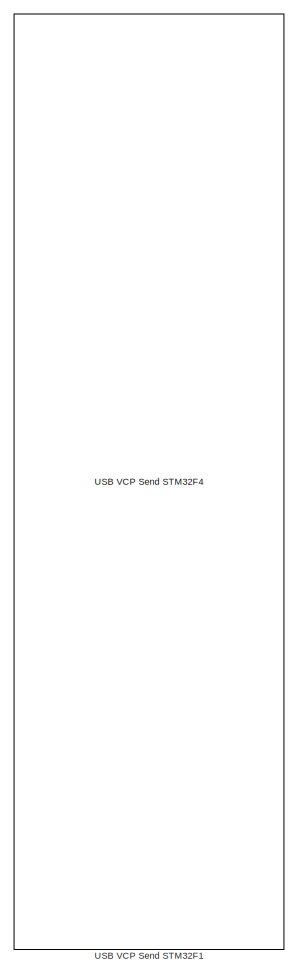
[diagram: USB VCP Send - part 1/2, right side, full height]
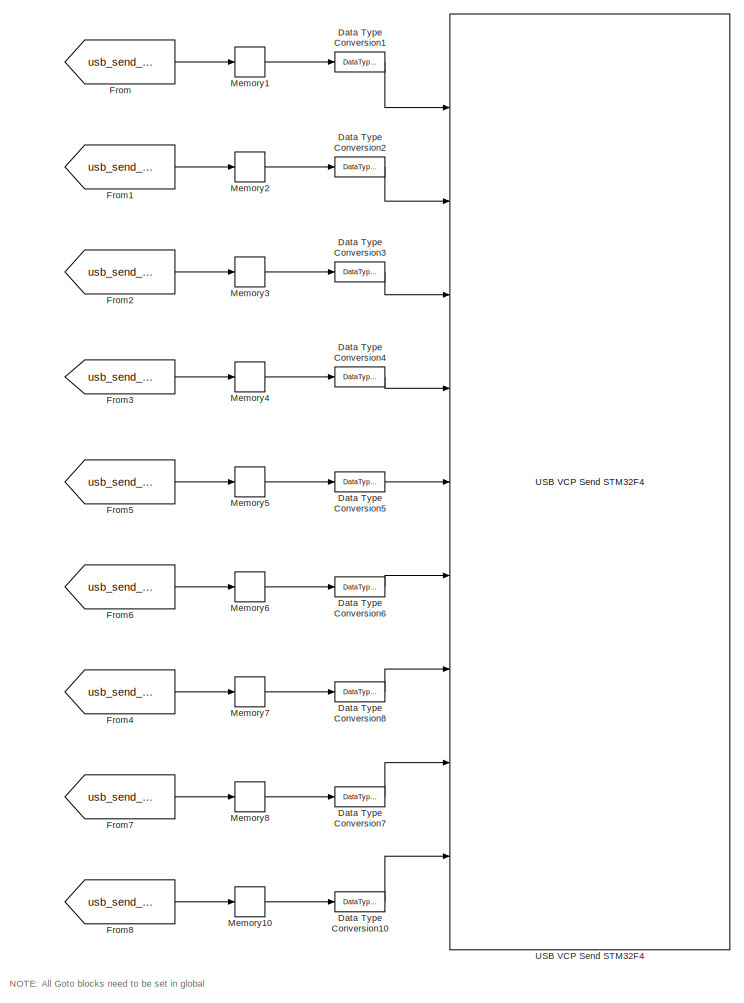
[diagram: USB VCP Send - part 2/2, left side, full height]
BLOCK [SubSystem] USB VCP Send
  Ports = []
  RequestExecContextInheritance = off
  Variant = off
BLOCK [DataTypeConversion] USB VCP Send/Data Type Conversion1
  RndMeth = Floor
  SaturateOnIntegerOverflow = off
BLOCK [DataTypeConversion] USB VCP Send/Data Type Conversion10
  RndMeth = Floor
  SaturateOnIntegerOverflow = off
BLOCK [DataTypeConversion] USB VCP Send/Data Type Conversion2
  RndMeth = Floor
  SaturateOnIntegerOverflow = off
BLOCK [DataTypeConversion] USB VCP Send/Data Type Conversion3
  RndMeth = Floor
  SaturateOnIntegerOverflow = off
BLOCK [DataTypeConversion] USB VCP Send/Data Type Conversion4
  RndMeth = Floor
  SaturateOnIntegerOverflow = off
BLOCK [DataTypeConversion] USB VCP Send/Data Type Conversion5
  RndMeth = Floor
  SaturateOnIntegerOverflow = off
BLOCK [DataTypeConversion] USB VCP Send/Data Type Conversion6
  RndMeth = Floor
  SaturateOnIntegerOverflow = off
BLOCK [DataTypeConversion] USB VCP Send/Data Type Conversion7
  RndMeth = Floor
  SaturateOnIntegerOverflow = off
BLOCK [DataTypeConversion] USB VCP Send/Data Type Conversion8
  RndMeth = Floor
  SaturateOnIntegerOverflow = off
BLOCK [From] USB VCP Send/From
  GotoTag = usb_send_ax
  TagVisibility = global
BLOCK [From] USB VCP Send/From1
  GotoTag = usb_send_ay
  TagVisibility = global
BLOCK [From] USB VCP Send/From2
  GotoTag = usb_send_az
  TagVisibility = global
BLOCK [From] USB VCP Send/From3
  GotoTag = usb_send_mx
  TagVisibility = global
BLOCK [From] USB VCP Send/From4
  GotoTag = usb_send_psi
  TagVisibility = global
BLOCK [From] USB VCP Send/From5
  GotoTag = usb_send_my
  TagVisibility = global
BLOCK [From] USB VCP Send/From6
  GotoTag = usb_send_mz
  TagVisibility = global
BLOCK [From] USB VCP Send/From7
  GotoTag = usb_send_theta
  TagVisibility = global
BLOCK [From] USB VCP Send/From8
  GotoTag = usb_send_phi
  TagVisibility = global
BLOCK [Memory] USB VCP Send/Memory1
  InheritSampleTime = on
BLOCK [Memory] USB VCP Send/Memory10
  InheritSampleTime = on
BLOCK [Memory] USB VCP Send/Memory2
  InheritSampleTime = on
BLOCK [Memory] USB VCP Send/Memory3
  InheritSampleTime = on
BLOCK [Memory] USB VCP Send/Memory4
  InheritSampleTime = on
BLOCK [Memory] USB VCP Send/Memory5
  InheritSampleTime = on
BLOCK [Memory] USB VCP Send/Memory6
  InheritSampleTime = on
BLOCK [Memory] USB VCP Send/Memory7
  InheritSampleTime = on
BLOCK [Memory] USB VCP Send/Memory8
  InheritSampleTime = on
BLOCK [Reference] USB VCP Send/USB VCP Send STM32F1  REF=BC_USB/USB VCP Send STM32F4
  Commented = on
  Ports = [9]
  SourceBlock = BC_USB/USB VCP Send STM32F4
  SourceType = USB_VCP_SEND_STM32F4 High Speed Large Data Packet Size
BLOCK [Reference] USB VCP Send/USB VCP Send STM32F4  REF=BC_USB/USB VCP Send STM32F4
  Ports = [9]
  SourceBlock = BC_USB/USB VCP Send STM32F4
  SourceType = USB_VCP_SEND_STM32F4 High Speed Large Data Packet Size
BLOCK [SubSystem] motor3
  Ports = [1]
  RequestExecContextInheritance = off
  Variant = off
BLOCK [Constant] motor3/Constant
  Value = 40
BLOCK [Constant] motor3/Constant2
  Value = 0
BLOCK [DataTypeConversion] motor3/Data Type Conversion4
  RndMeth = Floor
  SaturateOnIntegerOverflow = off
BLOCK [DataTypeConversion] motor3/Data Type Conversion5
  RndMeth = Floor
  SaturateOnIntegerOverflow = off
BLOCK [DataTypeConversion] motor3/Data Type Conversion6
  RndMeth = Floor
  SaturateOnIntegerOverflow = off
BLOCK [Reference] motor3/Direction Motor 3 (green)  REF=stm32f4_io_lib/Digital Output
  Ports = [1]
  SourceBlock = stm32f4_io_lib/Digital Output
  SourceType = stm32f4_digital_output
BLOCK [Reference] motor3/Enable Motor 3(yellow)  REF=stm32f4_io_lib/Digital Output
  Ports = [1]
  SourceBlock = stm32f4_io_lib/Digital Output
  SourceType = stm32f4_digital_output
BLOCK [Inport] motor3/In1
  IconDisplay = Port number
BLOCK [Memory] motor3/Memory4
  InheritSampleTime = on
BLOCK [Memory] motor3/Memory5
  InheritSampleTime = on
BLOCK [Memory] motor3/Memory6
  InheritSampleTime = on
BLOCK [S-Function] motor3/PWM Ampere motor 3
  EnableBusSupport = off
  FunctionName = stm32f4_basicpwm_fixed
  Parameters = timer,pwmperiod,uc3m_pwmperiod,ch1pin,ch2pin,ch3pin,ch4pin,sampletime,sampletimestr,blockid,apb,portstr,pinstr,pinmat,timarr,timprescale,chmat,polaritystr
  Ports = [1]
  SFcnIsStateOwnerBlock = off
  SFunctionDeploymentMode = off
BLOCK [Gain] rad to deg
  Gain = 180/pi
  OutDataTypeStr = Inherit: Inherit via internal rule
  ParamDataTypeStr = Inherit: Inherit via internal rule
  SaturateOnIntegerOverflow = off
ANNOTATION (root): Read value from one of the sensor. Read Accelometer Gyroscope and also Magnetometer
ANNOTATION (root): COMMUNICATION
ANNOTATION Magnetometer I2C/Magnetometer Data Ready : Check if data is ready
ANNOTATION USB VCP Send: NOTE: All Goto blocks need to be set in global
LINE  AK8963_ADDRESS:1 -> Shift Arithmetic1:1
LINE  MPU9250_ADDRESS:1 -> Shift Arithmetic2:1
NET Accelometer Gyroscope I2C/MPU9250 Init/Bitwise Operator:1 -> Accelometer Gyroscope I2C/MPU9250 Init/Logical Operator1:1, Accelometer Gyroscope I2C/MPU9250 Init/Logical Operator:2
NET Accelometer Gyroscope I2C/MPU9250 Init/Compare To Zero:1 -> Accelometer Gyroscope I2C/MPU9250 Init/Logical Operator2:1, Accelometer Gyroscope I2C/MPU9250 Init/Logical Operator:1
LINE Accelometer Gyroscope I2C/MPU9250 Init/I2C Master Read//Write:1 -> Accelometer Gyroscope I2C/MPU9250 Init/Compare To Zero:1
LINE Accelometer Gyroscope I2C/MPU9250 Init/I2C Master Read//Write:2 -> Accelometer Gyroscope I2C/MPU9250 Init/Bitwise Operator:1
LINE Accelometer Gyroscope I2C/MPU9250 Init/INT_PIN_CFG:1 -> Accelometer Gyroscope I2C/MPU9250 Init/I2C Master Read//Write:2
LINE Accelometer Gyroscope I2C/MPU9250 Init/Logical Operator1:1 -> Accelometer Gyroscope I2C/MPU9250 Init/Logical Operator2:2
LINE Accelometer Gyroscope I2C/MPU9250 Init/Logical Operator2:1 -> Accelometer Gyroscope I2C/MPU9250 Init/Write Configuration:enable
LINE Accelometer Gyroscope I2C/MPU9250 Init/Logical Operator:1 -> Accelometer Gyroscope I2C/MPU9250 Init/SETUP_READY:1
NET Accelometer Gyroscope I2C/MPU9250 Init/SlvAddr:1 -> Accelometer Gyroscope I2C/MPU9250 Init/I2C Master Read//Write:1, Accelometer Gyroscope I2C/MPU9250 Init/Write Configuration:1
LINE Accelometer Gyroscope I2C/MPU9250 Init/Write Configuration/BYPASS_EN:1 -> Accelometer Gyroscope I2C/MPU9250 Init/Write Configuration/I2C Master Read//Write1:3
LINE Accelometer Gyroscope I2C/MPU9250 Init/Write Configuration/I2C Master Read//Write1:1 -> Accelometer Gyroscope I2C/MPU9250 Init/Write Configuration/Terminator:1
LINE Accelometer Gyroscope I2C/MPU9250 Init/Write Configuration/INT_PIN_CFG1:1 -> Accelometer Gyroscope I2C/MPU9250 Init/Write Configuration/I2C Master Read//Write1:2
LINE Accelometer Gyroscope I2C/MPU9250 Init/Write Configuration/SlvAddr:1 -> Accelometer Gyroscope I2C/MPU9250 Init/Write Configuration/I2C Master Read//Write1:1
LINE Accelometer Gyroscope I2C/MPU9250 Init:1 -> Accelometer Gyroscope I2C/Read Accelometer and Gyroscope Data:enable
LINE Accelometer Gyroscope I2C/Read Accelometer and Gyroscope Data/ACCEL_XOUT_H:1 -> Accelometer Gyroscope I2C/Read Accelometer and Gyroscope Data/I2C Master Read//Write2:2
LINE Accelometer Gyroscope I2C/Read Accelometer and Gyroscope Data/Data Type Conversion12:1 -> Accelometer Gyroscope I2C/Read Accelometer and Gyroscope Data/Mux:3
LINE Accelometer Gyroscope I2C/Read Accelometer and Gyroscope Data/Data Type Conversion16:1 -> Accelometer Gyroscope I2C/Read Accelometer and Gyroscope Data/Mux1:1
LINE Accelometer Gyroscope I2C/Read Accelometer and Gyroscope Data/Data Type Conversion17:1 -> Accelometer Gyroscope I2C/Read Accelometer and Gyroscope Data/Mux1:3
LINE Accelometer Gyroscope I2C/Read Accelometer and Gyroscope Data/Data Type Conversion18:1 -> Accelometer Gyroscope I2C/Read Accelometer and Gyroscope Data/Mux1:2
LINE Accelometer Gyroscope I2C/Read Accelometer and Gyroscope Data/Data Type Conversion1:1 -> Accelometer Gyroscope I2C/Read Accelometer and Gyroscope Data/Mux:1
LINE Accelometer Gyroscope I2C/Read Accelometer and Gyroscope Data/Data Type Conversion6:1 -> Accelometer Gyroscope I2C/Read Accelometer and Gyroscope Data/Mux:2
LINE Accelometer Gyroscope I2C/Read Accelometer and Gyroscope Data/GYRO_XOUT_H:1 -> Accelometer Gyroscope I2C/Read Accelometer and Gyroscope Data/I2C Master Read//Write1:2
LINE Accelometer Gyroscope I2C/Read Accelometer and Gyroscope Data/I2C Master Read//Write1:1 -> Accelometer Gyroscope I2C/Read Accelometer and Gyroscope Data/DUMMY2:1
LINE Accelometer Gyroscope I2C/Read Accelometer and Gyroscope Data/I2C Master Read//Write1:2 -> Accelometer Gyroscope I2C/Read Accelometer and Gyroscope Data/Turn the MSB and LSB into a signed 16-bit integer GyroX:1
LINE Accelometer Gyroscope I2C/Read Accelometer and Gyroscope Data/I2C Master Read//Write1:3 -> Accelometer Gyroscope I2C/Read Accelometer and Gyroscope Data/Turn the MSB and LSB into a signed 16-bit integer GyroX:2
LINE Accelometer Gyroscope I2C/Read Accelometer and Gyroscope Data/I2C Master Read//Write1:4 -> Accelometer Gyroscope I2C/Read Accelometer and Gyroscope Data/Turn the MSB and LSB into a signed 16-bit integer GyroY:1
LINE Accelometer Gyroscope I2C/Read Accelometer and Gyroscope Data/I2C Master Read//Write1:5 -> Accelometer Gyroscope I2C/Read Accelometer and Gyroscope Data/Turn the MSB and LSB into a signed 16-bit integer GyroY:2
LINE Accelometer Gyroscope I2C/Read Accelometer and Gyroscope Data/I2C Master Read//Write1:6 -> Accelometer Gyroscope I2C/Read Accelometer and Gyroscope Data/Turn the MSB and LSB into a signed 16-bit integer GyroZ:1
LINE Accelometer Gyroscope I2C/Read Accelometer and Gyroscope Data/I2C Master Read//Write1:7 -> Accelometer Gyroscope I2C/Read Accelometer and Gyroscope Data/Turn the MSB and LSB into a signed 16-bit integer GyroZ:2
LINE Accelometer Gyroscope I2C/Read Accelometer and Gyroscope Data/I2C Master Read//Write2:1 -> Accelometer Gyroscope I2C/Read Accelometer and Gyroscope Data/DUMMY:1
LINE Accelometer Gyroscope I2C/Read Accelometer and Gyroscope Data/I2C Master Read//Write2:2 -> Accelometer Gyroscope I2C/Read Accelometer and Gyroscope Data/Turn the MSB and LSB into a signed 16-bit integer AccX:1
LINE Accelometer Gyroscope I2C/Read Accelometer and Gyroscope Data/I2C Master Read//Write2:3 -> Accelometer Gyroscope I2C/Read Accelometer and Gyroscope Data/Turn the MSB and LSB into a signed 16-bit integer AccX:2
LINE Accelometer Gyroscope I2C/Read Accelometer and Gyroscope Data/I2C Master Read//Write2:4 -> Accelometer Gyroscope I2C/Read Accelometer and Gyroscope Data/Turn the MSB and LSB into a signed 16-bit integer AccY:1
LINE Accelometer Gyroscope I2C/Read Accelometer and Gyroscope Data/I2C Master Read//Write2:5 -> Accelometer Gyroscope I2C/Read Accelometer and Gyroscope Data/Turn the MSB and LSB into a signed 16-bit integer AccY:2
LINE Accelometer Gyroscope I2C/Read Accelometer and Gyroscope Data/I2C Master Read//Write2:6 -> Accelometer Gyroscope I2C/Read Accelometer and Gyroscope Data/Turn the MSB and LSB into a signed 16-bit integer AccZ:1
LINE Accelometer Gyroscope I2C/Read Accelometer and Gyroscope Data/I2C Master Read//Write2:7 -> Accelometer Gyroscope I2C/Read Accelometer and Gyroscope Data/Turn the MSB and LSB into a signed 16-bit integer AccZ:2
LINE Accelometer Gyroscope I2C/Read Accelometer and Gyroscope Data/Mux1:1 -> Accelometer Gyroscope I2C/Read Accelometer and Gyroscope Data/gyro:1
LINE Accelometer Gyroscope I2C/Read Accelometer and Gyroscope Data/Mux:1 -> Accelometer Gyroscope I2C/Read Accelometer and Gyroscope Data/acc:1
LINE Accelometer Gyroscope I2C/Read Accelometer and Gyroscope Data/Old gyro get data Used during SPI before/ a1:1 -> Accelometer Gyroscope I2C/Read Accelometer and Gyroscope Data/Old gyro get data Used during SPI before/If wrong in the data use old one1:3
LINE Accelometer Gyroscope I2C/Read Accelometer and Gyroscope Data/Old gyro get data Used during SPI before/ a2:1 -> Accelometer Gyroscope I2C/Read Accelometer and Gyroscope Data/Old gyro get data Used during SPI before/If wrong in the data use old one2:3
LINE Accelometer Gyroscope I2C/Read Accelometer and Gyroscope Data/Old gyro get data Used during SPI before/ a:1 -> Accelometer Gyroscope I2C/Read Accelometer and Gyroscope Data/Old gyro get data Used during SPI before/If wrong in the data use old one:3
NET Accelometer Gyroscope I2C/Read Accelometer and Gyroscope Data/Old gyro get data Used during SPI before/Data Type Conversion10:1 -> Accelometer Gyroscope I2C/Read Accelometer and Gyroscope Data/Old gyro get data Used during SPI before/Take away Sensor fail reading2:1, Accelometer Gyroscope I2C/Read Accelometer and Gyroscope Data/Old gyro get data Used during SPI before/Unit Delay9:1
NET Accelometer Gyroscope I2C/Read Accelometer and Gyroscope Data/Old gyro get data Used during SPI before/Data Type Conversion11:1 -> Accelometer Gyroscope I2C/Read Accelometer and Gyroscope Data/Old gyro get data Used during SPI before/Take away Sensor fail reading if two bad in raw2:1, Accelometer Gyroscope I2C/Read Accelometer and Gyroscope Data/Old gyro get data Used during SPI before/Unit Delay7:1
LINE Accelometer Gyroscope I2C/Read Accelometer and Gyroscope Data/Old gyro get data Used during SPI before/Data Type Conversion2:1 -> Accelometer Gyroscope I2C/Read Accelometer and Gyroscope Data/Old gyro get data Used during SPI before/Data Type Conversion3:1
NET Accelometer Gyroscope I2C/Read Accelometer and Gyroscope Data/Old gyro get data Used during SPI before/Data Type Conversion3:1 -> Accelometer Gyroscope I2C/Read Accelometer and Gyroscope Data/Old gyro get data Used during SPI before/Take away Sensor fail reading:1, Accelometer Gyroscope I2C/Read Accelometer and Gyroscope Data/Old gyro get data Used during SPI before/Unit Delay8:1
LINE Accelometer Gyroscope I2C/Read Accelometer and Gyroscope Data/Old gyro get data Used during SPI before/Data Type Conversion4:1 -> Accelometer Gyroscope I2C/Read Accelometer and Gyroscope Data/Old gyro get data Used during SPI before/Data Type Conversion5:1
NET Accelometer Gyroscope I2C/Read Accelometer and Gyroscope Data/Old gyro get data Used during SPI before/Data Type Conversion5:1 -> Accelometer Gyroscope I2C/Read Accelometer and Gyroscope Data/Old gyro get data Used during SPI before/Take away Sensor fail reading1:1, Accelometer Gyroscope I2C/Read Accelometer and Gyroscope Data/Old gyro get data Used during SPI before/Unit Delay5:1
NET Accelometer Gyroscope I2C/Read Accelometer and Gyroscope Data/Old gyro get data Used during SPI before/Data Type Conversion7:1 -> Accelometer Gyroscope I2C/Read Accelometer and Gyroscope Data/Old gyro get data Used during SPI before/Take away Sensor fail reading if two bad in raw1:1, Accelometer Gyroscope I2C/Read Accelometer and Gyroscope Data/Old gyro get data Used during SPI before/Unit Delay4:1
NET Accelometer Gyroscope I2C/Read Accelometer and Gyroscope Data/Old gyro get data Used during SPI before/Data Type Conversion8:1 -> Accelometer Gyroscope I2C/Read Accelometer and Gyroscope Data/Old gyro get data Used during SPI before/Take away Sensor fail reading if two bad in raw:1, Accelometer Gyroscope I2C/Read Accelometer and Gyroscope Data/Old gyro get data Used during SPI before/Unit Delay2:1
LINE Accelometer Gyroscope I2C/Read Accelometer and Gyroscope Data/Old gyro get data Used during SPI before/Data Type Conversion9:1 -> Accelometer Gyroscope I2C/Read Accelometer and Gyroscope Data/Old gyro get data Used during SPI before/Data Type Conversion10:1
LINE Accelometer Gyroscope I2C/Read Accelometer and Gyroscope Data/Old gyro get data Used during SPI before/GYRO_XOUT_H:1 -> Accelometer Gyroscope I2C/Read Accelometer and Gyroscope Data/Old gyro get data Used during SPI before/Bitwise Operator3:1
LINE Accelometer Gyroscope I2C/Read Accelometer and Gyroscope Data/Old gyro get data Used during SPI before/If wrong in the data use old one 1:1 -> Accelometer Gyroscope I2C/Read Accelometer and Gyroscope Data/Old gyro get data Used during SPI before/USE THIS ONE!!3:1
LINE Accelometer Gyroscope I2C/Read Accelometer and Gyroscope Data/Old gyro get data Used during SPI before/If wrong in the data use old one 2:1 -> Accelometer Gyroscope I2C/Read Accelometer and Gyroscope Data/Old gyro get data Used during SPI before/USE THIS ONE!!2:1
LINE Accelometer Gyroscope I2C/Read Accelometer and Gyroscope Data/Old gyro get data Used during SPI before/If wrong in the data use old one 3:1 -> Accelometer Gyroscope I2C/Read Accelometer and Gyroscope Data/Old gyro get data Used during SPI before/USE THIS ONE!!4:1
LINE Accelometer Gyroscope I2C/Read Accelometer and Gyroscope Data/Old gyro get data Used during SPI before/If wrong in the data use old one1:1 -> Accelometer Gyroscope I2C/Read Accelometer and Gyroscope Data/Old gyro get data Used during SPI before/USE THIS ONE!!3:2
LINE Accelometer Gyroscope I2C/Read Accelometer and Gyroscope Data/Old gyro get data Used during SPI before/If wrong in the data use old one2:1 -> Accelometer Gyroscope I2C/Read Accelometer and Gyroscope Data/Old gyro get data Used during SPI before/USE THIS ONE!!4:2
LINE Accelometer Gyroscope I2C/Read Accelometer and Gyroscope Data/Old gyro get data Used during SPI before/If wrong in the data use old one:1 -> Accelometer Gyroscope I2C/Read Accelometer and Gyroscope Data/Old gyro get data Used during SPI before/USE THIS ONE!!2:2
LINE Accelometer Gyroscope I2C/Read Accelometer and Gyroscope Data/Old gyro get data Used during SPI before/READ_FLAG2:1 -> Accelometer Gyroscope I2C/Read Accelometer and Gyroscope Data/Old gyro get data Used during SPI before/Bitwise Operator3:2
NET Accelometer Gyroscope I2C/Read Accelometer and Gyroscope Data/Old gyro get data Used during SPI before/SPI Master Read//Write5:1 -> Accelometer Gyroscope I2C/Read Accelometer and Gyroscope Data/Old gyro get data Used during SPI before/If wrong in the data use old one 1:2, Accelometer Gyroscope I2C/Read Accelometer and Gyroscope Data/Old gyro get data Used during SPI before/If wrong in the data use old one 2:2, Accelometer Gyroscope I2C/Read Accelometer and Gyroscope Data/Old gyro get data Used during SPI before/If wrong in the data use old one 3:2, Accelometer Gyroscope I2C/Read Accelometer and Gyroscope Data/Old gyro get data Used during SPI before/If wrong in the data use old one1:2, Accelometer Gyroscope I2C/Read Accelometer and Gyroscope Data/Old gyro get data Used during SPI before/If wrong in the data use old one2:2, Accelometer Gyroscope I2C/Read Accelometer and Gyroscope Data/Old gyro get data Used during SPI before/If wrong in the data use old one:2
LINE Accelometer Gyroscope I2C/Read Accelometer and Gyroscope Data/Old gyro get data Used during SPI before/Take away Sensor fail reading if two bad in raw1:1 -> Accelometer Gyroscope I2C/Read Accelometer and Gyroscope Data/Old gyro get data Used during SPI before/Out2:1
LINE Accelometer Gyroscope I2C/Read Accelometer and Gyroscope Data/Old gyro get data Used during SPI before/Take away Sensor fail reading if two bad in raw2:1 -> Accelometer Gyroscope I2C/Read Accelometer and Gyroscope Data/Old gyro get data Used during SPI before/Out1:1
LINE Accelometer Gyroscope I2C/Read Accelometer and Gyroscope Data/Old gyro get data Used during SPI before/Take away Sensor fail reading if two bad in raw:1 -> Accelometer Gyroscope I2C/Read Accelometer and Gyroscope Data/Old gyro get data Used during SPI before/Out3:1
LINE Accelometer Gyroscope I2C/Read Accelometer and Gyroscope Data/Old gyro get data Used during SPI before/Take away Sensor fail reading1:1 -> Accelometer Gyroscope I2C/Read Accelometer and Gyroscope Data/Old gyro get data Used during SPI before/Data Type Conversion7:1
LINE Accelometer Gyroscope I2C/Read Accelometer and Gyroscope Data/Old gyro get data Used during SPI before/Take away Sensor fail reading2:1 -> Accelometer Gyroscope I2C/Read Accelometer and Gyroscope Data/Old gyro get data Used during SPI before/Data Type Conversion11:1
LINE Accelometer Gyroscope I2C/Read Accelometer and Gyroscope Data/Old gyro get data Used during SPI before/Take away Sensor fail reading:1 -> Accelometer Gyroscope I2C/Read Accelometer and Gyroscope Data/Old gyro get data Used during SPI before/Data Type Conversion8:1
LINE Accelometer Gyroscope I2C/Read Accelometer and Gyroscope Data/Old gyro get data Used during SPI before/USE THIS ONE!!2/Bitwise Operator:1 -> Accelometer Gyroscope I2C/Read Accelometer and Gyroscope Data/Old gyro get data Used during SPI before/USE THIS ONE!!2/Gyro_Zout:1
LINE Accelometer Gyroscope I2C/Read Accelometer and Gyroscope Data/Old gyro get data Used during SPI before/USE THIS ONE!!2/Data Type Conversion1:1 -> Accelometer Gyroscope I2C/Read Accelometer and Gyroscope Data/Old gyro get data Used during SPI before/USE THIS ONE!!2/Shift Arithmetic:1
LINE Accelometer Gyroscope I2C/Read Accelometer and Gyroscope Data/Old gyro get data Used during SPI before/USE THIS ONE!!2/Data Type Conversion:1 -> Accelometer Gyroscope I2C/Read Accelometer and Gyroscope Data/Old gyro get data Used during SPI before/USE THIS ONE!!2/Bitwise Operator:2
LINE Accelometer Gyroscope I2C/Read Accelometer and Gyroscope Data/Old gyro get data Used during SPI before/USE THIS ONE!!2/Gyro_Zout_High :1 -> Accelometer Gyroscope I2C/Read Accelometer and Gyroscope Data/Old gyro get data Used during SPI before/USE THIS ONE!!2/Data Type Conversion1:1
LINE Accelometer Gyroscope I2C/Read Accelometer and Gyroscope Data/Old gyro get data Used during SPI before/USE THIS ONE!!2/Gyro_Zout_Low:1 -> Accelometer Gyroscope I2C/Read Accelometer and Gyroscope Data/Old gyro get data Used during SPI before/USE THIS ONE!!2/Data Type Conversion:1
LINE Accelometer Gyroscope I2C/Read Accelometer and Gyroscope Data/Old gyro get data Used during SPI before/USE THIS ONE!!2/Shift Arithmetic:1 -> Accelometer Gyroscope I2C/Read Accelometer and Gyroscope Data/Old gyro get data Used during SPI before/USE THIS ONE!!2/Bitwise Operator:1
LINE Accelometer Gyroscope I2C/Read Accelometer and Gyroscope Data/Old gyro get data Used during SPI before/USE THIS ONE!!2:1 -> Accelometer Gyroscope I2C/Read Accelometer and Gyroscope Data/Old gyro get data Used during SPI before/Data Type Conversion2:1
LINE Accelometer Gyroscope I2C/Read Accelometer and Gyroscope Data/Old gyro get data Used during SPI before/USE THIS ONE!!3/Bitwise Operator:1 -> Accelometer Gyroscope I2C/Read Accelometer and Gyroscope Data/Old gyro get data Used during SPI before/USE THIS ONE!!3/Gyro_Zout:1
LINE Accelometer Gyroscope I2C/Read Accelometer and Gyroscope Data/Old gyro get data Used during SPI before/USE THIS ONE!!3/Data Type Conversion1:1 -> Accelometer Gyroscope I2C/Read Accelometer and Gyroscope Data/Old gyro get data Used during SPI before/USE THIS ONE!!3/Shift Arithmetic:1
LINE Accelometer Gyroscope I2C/Read Accelometer and Gyroscope Data/Old gyro get data Used during SPI before/USE THIS ONE!!3/Data Type Conversion:1 -> Accelometer Gyroscope I2C/Read Accelometer and Gyroscope Data/Old gyro get data Used during SPI before/USE THIS ONE!!3/Bitwise Operator:2
LINE Accelometer Gyroscope I2C/Read Accelometer and Gyroscope Data/Old gyro get data Used during SPI before/USE THIS ONE!!3/Gyro_Zout_High :1 -> Accelometer Gyroscope I2C/Read Accelometer and Gyroscope Data/Old gyro get data Used during SPI before/USE THIS ONE!!3/Data Type Conversion1:1
LINE Accelometer Gyroscope I2C/Read Accelometer and Gyroscope Data/Old gyro get data Used during SPI before/USE THIS ONE!!3/Gyro_Zout_Low:1 -> Accelometer Gyroscope I2C/Read Accelometer and Gyroscope Data/Old gyro get data Used during SPI before/USE THIS ONE!!3/Data Type Conversion:1
LINE Accelometer Gyroscope I2C/Read Accelometer and Gyroscope Data/Old gyro get data Used during SPI before/USE THIS ONE!!3/Shift Arithmetic:1 -> Accelometer Gyroscope I2C/Read Accelometer and Gyroscope Data/Old gyro get data Used during SPI before/USE THIS ONE!!3/Bitwise Operator:1
LINE Accelometer Gyroscope I2C/Read Accelometer and Gyroscope Data/Old gyro get data Used during SPI before/USE THIS ONE!!3:1 -> Accelometer Gyroscope I2C/Read Accelometer and Gyroscope Data/Old gyro get data Used during SPI before/Data Type Conversion4:1
LINE Accelometer Gyroscope I2C/Read Accelometer and Gyroscope Data/Old gyro get data Used during SPI before/USE THIS ONE!!4/Bitwise Operator:1 -> Accelometer Gyroscope I2C/Read Accelometer and Gyroscope Data/Old gyro get data Used during SPI before/USE THIS ONE!!4/Gyro_Zout:1
LINE Accelometer Gyroscope I2C/Read Accelometer and Gyroscope Data/Old gyro get data Used during SPI before/USE THIS ONE!!4/Data Type Conversion1:1 -> Accelometer Gyroscope I2C/Read Accelometer and Gyroscope Data/Old gyro get data Used during SPI before/USE THIS ONE!!4/Shift Arithmetic:1
LINE Accelometer Gyroscope I2C/Read Accelometer and Gyroscope Data/Old gyro get data Used during SPI before/USE THIS ONE!!4/Data Type Conversion:1 -> Accelometer Gyroscope I2C/Read Accelometer and Gyroscope Data/Old gyro get data Used during SPI before/USE THIS ONE!!4/Bitwise Operator:2
LINE Accelometer Gyroscope I2C/Read Accelometer and Gyroscope Data/Old gyro get data Used during SPI before/USE THIS ONE!!4/Gyro_Zout_High :1 -> Accelometer Gyroscope I2C/Read Accelometer and Gyroscope Data/Old gyro get data Used during SPI before/USE THIS ONE!!4/Data Type Conversion1:1
LINE Accelometer Gyroscope I2C/Read Accelometer and Gyroscope Data/Old gyro get data Used during SPI before/USE THIS ONE!!4/Gyro_Zout_Low:1 -> Accelometer Gyroscope I2C/Read Accelometer and Gyroscope Data/Old gyro get data Used during SPI before/USE THIS ONE!!4/Data Type Conversion:1
LINE Accelometer Gyroscope I2C/Read Accelometer and Gyroscope Data/Old gyro get data Used during SPI before/USE THIS ONE!!4/Shift Arithmetic:1 -> Accelometer Gyroscope I2C/Read Accelometer and Gyroscope Data/Old gyro get data Used during SPI before/USE THIS ONE!!4/Bitwise Operator:1
LINE Accelometer Gyroscope I2C/Read Accelometer and Gyroscope Data/Old gyro get data Used during SPI before/USE THIS ONE!!4:1 -> Accelometer Gyroscope I2C/Read Accelometer and Gyroscope Data/Old gyro get data Used during SPI before/Data Type Conversion9:1
LINE Accelometer Gyroscope I2C/Read Accelometer and Gyroscope Data/Old gyro get data Used during SPI before/Unit Delay1:1 -> Accelometer Gyroscope I2C/Read Accelometer and Gyroscope Data/Old gyro get data Used during SPI before/If wrong in the data use old one 2:3
LINE Accelometer Gyroscope I2C/Read Accelometer and Gyroscope Data/Old gyro get data Used during SPI before/Unit Delay2:1 -> Accelometer Gyroscope I2C/Read Accelometer and Gyroscope Data/Old gyro get data Used during SPI before/Take away Sensor fail reading if two bad in raw:2
LINE Accelometer Gyroscope I2C/Read Accelometer and Gyroscope Data/Old gyro get data Used during SPI before/Unit Delay3:1 -> Accelometer Gyroscope I2C/Read Accelometer and Gyroscope Data/Old gyro get data Used during SPI before/If wrong in the data use old one 1:3
LINE Accelometer Gyroscope I2C/Read Accelometer and Gyroscope Data/Old gyro get data Used during SPI before/Unit Delay4:1 -> Accelometer Gyroscope I2C/Read Accelometer and Gyroscope Data/Old gyro get data Used during SPI before/Take away Sensor fail reading if two bad in raw1:2
LINE Accelometer Gyroscope I2C/Read Accelometer and Gyroscope Data/Old gyro get data Used during SPI before/Unit Delay5:1 -> Accelometer Gyroscope I2C/Read Accelometer and Gyroscope Data/Old gyro get data Used during SPI before/Take away Sensor fail reading1:2
LINE Accelometer Gyroscope I2C/Read Accelometer and Gyroscope Data/Old gyro get data Used during SPI before/Unit Delay6:1 -> Accelometer Gyroscope I2C/Read Accelometer and Gyroscope Data/Old gyro get data Used during SPI before/If wrong in the data use old one 3:3
LINE Accelometer Gyroscope I2C/Read Accelometer and Gyroscope Data/Old gyro get data Used during SPI before/Unit Delay7:1 -> Accelometer Gyroscope I2C/Read Accelometer and Gyroscope Data/Old gyro get data Used during SPI before/Take away Sensor fail reading if two bad in raw2:2
LINE Accelometer Gyroscope I2C/Read Accelometer and Gyroscope Data/Old gyro get data Used during SPI before/Unit Delay8:1 -> Accelometer Gyroscope I2C/Read Accelometer and Gyroscope Data/Old gyro get data Used during SPI before/Take away Sensor fail reading:2
LINE Accelometer Gyroscope I2C/Read Accelometer and Gyroscope Data/Old gyro get data Used during SPI before/Unit Delay9:1 -> Accelometer Gyroscope I2C/Read Accelometer and Gyroscope Data/Old gyro get data Used during SPI before/Take away Sensor fail reading2:2
NET Accelometer Gyroscope I2C/Read Accelometer and Gyroscope Data/SlvAddr:1 -> Accelometer Gyroscope I2C/Read Accelometer and Gyroscope Data/I2C Master Read//Write1:1, Accelometer Gyroscope I2C/Read Accelometer and Gyroscope Data/I2C Master Read//Write2:1
LINE Accelometer Gyroscope I2C/Read Accelometer and Gyroscope Data/Turn the MSB and LSB into a signed 16-bit integer AccX/Bitwise Operator2:1 -> Accelometer Gyroscope I2C/Read Accelometer and Gyroscope Data/Turn the MSB and LSB into a signed 16-bit integer AccX/out16b:1
LINE Accelometer Gyroscope I2C/Read Accelometer and Gyroscope Data/Turn the MSB and LSB into a signed 16-bit integer AccX/Data Type Conversion6:1 -> Accelometer Gyroscope I2C/Read Accelometer and Gyroscope Data/Turn the MSB and LSB into a signed 16-bit integer AccX/Bitwise Operator2:2
LINE Accelometer Gyroscope I2C/Read Accelometer and Gyroscope Data/Turn the MSB and LSB into a signed 16-bit integer AccX/Data Type Conversion7:1 -> Accelometer Gyroscope I2C/Read Accelometer and Gyroscope Data/Turn the MSB and LSB into a signed 16-bit integer AccX/Shift Arithmetic2:1
LINE Accelometer Gyroscope I2C/Read Accelometer and Gyroscope Data/Turn the MSB and LSB into a signed 16-bit integer AccX/LSB:1 -> Accelometer Gyroscope I2C/Read Accelometer and Gyroscope Data/Turn the MSB and LSB into a signed 16-bit integer AccX/Data Type Conversion6:1
LINE Accelometer Gyroscope I2C/Read Accelometer and Gyroscope Data/Turn the MSB and LSB into a signed 16-bit integer AccX/MSB:1 -> Accelometer Gyroscope I2C/Read Accelometer and Gyroscope Data/Turn the MSB and LSB into a signed 16-bit integer AccX/Data Type Conversion7:1
LINE Accelometer Gyroscope I2C/Read Accelometer and Gyroscope Data/Turn the MSB and LSB into a signed 16-bit integer AccX/Shift Arithmetic2:1 -> Accelometer Gyroscope I2C/Read Accelometer and Gyroscope Data/Turn the MSB and LSB into a signed 16-bit integer AccX/Bitwise Operator2:1
LINE Accelometer Gyroscope I2C/Read Accelometer and Gyroscope Data/Turn the MSB and LSB into a signed 16-bit integer AccX:1 -> Accelometer Gyroscope I2C/Read Accelometer and Gyroscope Data/Data Type Conversion1:1
LINE Accelometer Gyroscope I2C/Read Accelometer and Gyroscope Data/Turn the MSB and LSB into a signed 16-bit integer AccY/Bitwise Operator2:1 -> Accelometer Gyroscope I2C/Read Accelometer and Gyroscope Data/Turn the MSB and LSB into a signed 16-bit integer AccY/out16b:1
LINE Accelometer Gyroscope I2C/Read Accelometer and Gyroscope Data/Turn the MSB and LSB into a signed 16-bit integer AccY/Data Type Conversion6:1 -> Accelometer Gyroscope I2C/Read Accelometer and Gyroscope Data/Turn the MSB and LSB into a signed 16-bit integer AccY/Bitwise Operator2:2
LINE Accelometer Gyroscope I2C/Read Accelometer and Gyroscope Data/Turn the MSB and LSB into a signed 16-bit integer AccY/Data Type Conversion7:1 -> Accelometer Gyroscope I2C/Read Accelometer and Gyroscope Data/Turn the MSB and LSB into a signed 16-bit integer AccY/Shift Arithmetic2:1
LINE Accelometer Gyroscope I2C/Read Accelometer and Gyroscope Data/Turn the MSB and LSB into a signed 16-bit integer AccY/LSB:1 -> Accelometer Gyroscope I2C/Read Accelometer and Gyroscope Data/Turn the MSB and LSB into a signed 16-bit integer AccY/Data Type Conversion6:1
LINE Accelometer Gyroscope I2C/Read Accelometer and Gyroscope Data/Turn the MSB and LSB into a signed 16-bit integer AccY/MSB:1 -> Accelometer Gyroscope I2C/Read Accelometer and Gyroscope Data/Turn the MSB and LSB into a signed 16-bit integer AccY/Data Type Conversion7:1
LINE Accelometer Gyroscope I2C/Read Accelometer and Gyroscope Data/Turn the MSB and LSB into a signed 16-bit integer AccY/Shift Arithmetic2:1 -> Accelometer Gyroscope I2C/Read Accelometer and Gyroscope Data/Turn the MSB and LSB into a signed 16-bit integer AccY/Bitwise Operator2:1
LINE Accelometer Gyroscope I2C/Read Accelometer and Gyroscope Data/Turn the MSB and LSB into a signed 16-bit integer AccY:1 -> Accelometer Gyroscope I2C/Read Accelometer and Gyroscope Data/Data Type Conversion6:1
LINE Accelometer Gyroscope I2C/Read Accelometer and Gyroscope Data/Turn the MSB and LSB into a signed 16-bit integer AccZ/Bitwise Operator2:1 -> Accelometer Gyroscope I2C/Read Accelometer and Gyroscope Data/Turn the MSB and LSB into a signed 16-bit integer AccZ/out16b:1
LINE Accelometer Gyroscope I2C/Read Accelometer and Gyroscope Data/Turn the MSB and LSB into a signed 16-bit integer AccZ/Data Type Conversion6:1 -> Accelometer Gyroscope I2C/Read Accelometer and Gyroscope Data/Turn the MSB and LSB into a signed 16-bit integer AccZ/Bitwise Operator2:2
LINE Accelometer Gyroscope I2C/Read Accelometer and Gyroscope Data/Turn the MSB and LSB into a signed 16-bit integer AccZ/Data Type Conversion7:1 -> Accelometer Gyroscope I2C/Read Accelometer and Gyroscope Data/Turn the MSB and LSB into a signed 16-bit integer AccZ/Shift Arithmetic2:1
LINE Accelometer Gyroscope I2C/Read Accelometer and Gyroscope Data/Turn the MSB and LSB into a signed 16-bit integer AccZ/LSB:1 -> Accelometer Gyroscope I2C/Read Accelometer and Gyroscope Data/Turn the MSB and LSB into a signed 16-bit integer AccZ/Data Type Conversion6:1
LINE Accelometer Gyroscope I2C/Read Accelometer and Gyroscope Data/Turn the MSB and LSB into a signed 16-bit integer AccZ/MSB:1 -> Accelometer Gyroscope I2C/Read Accelometer and Gyroscope Data/Turn the MSB and LSB into a signed 16-bit integer AccZ/Data Type Conversion7:1
LINE Accelometer Gyroscope I2C/Read Accelometer and Gyroscope Data/Turn the MSB and LSB into a signed 16-bit integer AccZ/Shift Arithmetic2:1 -> Accelometer Gyroscope I2C/Read Accelometer and Gyroscope Data/Turn the MSB and LSB into a signed 16-bit integer AccZ/Bitwise Operator2:1
LINE Accelometer Gyroscope I2C/Read Accelometer and Gyroscope Data/Turn the MSB and LSB into a signed 16-bit integer AccZ:1 -> Accelometer Gyroscope I2C/Read Accelometer and Gyroscope Data/Data Type Conversion12:1
LINE Accelometer Gyroscope I2C/Read Accelometer and Gyroscope Data/Turn the MSB and LSB into a signed 16-bit integer GyroX/Bitwise Operator2:1 -> Accelometer Gyroscope I2C/Read Accelometer and Gyroscope Data/Turn the MSB and LSB into a signed 16-bit integer GyroX/out16b:1
LINE Accelometer Gyroscope I2C/Read Accelometer and Gyroscope Data/Turn the MSB and LSB into a signed 16-bit integer GyroX/Data Type Conversion6:1 -> Accelometer Gyroscope I2C/Read Accelometer and Gyroscope Data/Turn the MSB and LSB into a signed 16-bit integer GyroX/Bitwise Operator2:2
LINE Accelometer Gyroscope I2C/Read Accelometer and Gyroscope Data/Turn the MSB and LSB into a signed 16-bit integer GyroX/Data Type Conversion7:1 -> Accelometer Gyroscope I2C/Read Accelometer and Gyroscope Data/Turn the MSB and LSB into a signed 16-bit integer GyroX/Shift Arithmetic2:1
LINE Accelometer Gyroscope I2C/Read Accelometer and Gyroscope Data/Turn the MSB and LSB into a signed 16-bit integer GyroX/LSB:1 -> Accelometer Gyroscope I2C/Read Accelometer and Gyroscope Data/Turn the MSB and LSB into a signed 16-bit integer GyroX/Data Type Conversion6:1
LINE Accelometer Gyroscope I2C/Read Accelometer and Gyroscope Data/Turn the MSB and LSB into a signed 16-bit integer GyroX/MSB:1 -> Accelometer Gyroscope I2C/Read Accelometer and Gyroscope Data/Turn the MSB and LSB into a signed 16-bit integer GyroX/Data Type Conversion7:1
LINE Accelometer Gyroscope I2C/Read Accelometer and Gyroscope Data/Turn the MSB and LSB into a signed 16-bit integer GyroX/Shift Arithmetic2:1 -> Accelometer Gyroscope I2C/Read Accelometer and Gyroscope Data/Turn the MSB and LSB into a signed 16-bit integer GyroX/Bitwise Operator2:1
LINE Accelometer Gyroscope I2C/Read Accelometer and Gyroscope Data/Turn the MSB and LSB into a signed 16-bit integer GyroX:1 -> Accelometer Gyroscope I2C/Read Accelometer and Gyroscope Data/Data Type Conversion16:1
LINE Accelometer Gyroscope I2C/Read Accelometer and Gyroscope Data/Turn the MSB and LSB into a signed 16-bit integer GyroY/Bitwise Operator2:1 -> Accelometer Gyroscope I2C/Read Accelometer and Gyroscope Data/Turn the MSB and LSB into a signed 16-bit integer GyroY/out16b:1
LINE Accelometer Gyroscope I2C/Read Accelometer and Gyroscope Data/Turn the MSB and LSB into a signed 16-bit integer GyroY/Data Type Conversion6:1 -> Accelometer Gyroscope I2C/Read Accelometer and Gyroscope Data/Turn the MSB and LSB into a signed 16-bit integer GyroY/Bitwise Operator2:2
LINE Accelometer Gyroscope I2C/Read Accelometer and Gyroscope Data/Turn the MSB and LSB into a signed 16-bit integer GyroY/Data Type Conversion7:1 -> Accelometer Gyroscope I2C/Read Accelometer and Gyroscope Data/Turn the MSB and LSB into a signed 16-bit integer GyroY/Shift Arithmetic2:1
LINE Accelometer Gyroscope I2C/Read Accelometer and Gyroscope Data/Turn the MSB and LSB into a signed 16-bit integer GyroY/LSB:1 -> Accelometer Gyroscope I2C/Read Accelometer and Gyroscope Data/Turn the MSB and LSB into a signed 16-bit integer GyroY/Data Type Conversion6:1
LINE Accelometer Gyroscope I2C/Read Accelometer and Gyroscope Data/Turn the MSB and LSB into a signed 16-bit integer GyroY/MSB:1 -> Accelometer Gyroscope I2C/Read Accelometer and Gyroscope Data/Turn the MSB and LSB into a signed 16-bit integer GyroY/Data Type Conversion7:1
LINE Accelometer Gyroscope I2C/Read Accelometer and Gyroscope Data/Turn the MSB and LSB into a signed 16-bit integer GyroY/Shift Arithmetic2:1 -> Accelometer Gyroscope I2C/Read Accelometer and Gyroscope Data/Turn the MSB and LSB into a signed 16-bit integer GyroY/Bitwise Operator2:1
LINE Accelometer Gyroscope I2C/Read Accelometer and Gyroscope Data/Turn the MSB and LSB into a signed 16-bit integer GyroY:1 -> Accelometer Gyroscope I2C/Read Accelometer and Gyroscope Data/Data Type Conversion18:1
LINE Accelometer Gyroscope I2C/Read Accelometer and Gyroscope Data/Turn the MSB and LSB into a signed 16-bit integer GyroZ/Bitwise Operator2:1 -> Accelometer Gyroscope I2C/Read Accelometer and Gyroscope Data/Turn the MSB and LSB into a signed 16-bit integer GyroZ/out16b:1
LINE Accelometer Gyroscope I2C/Read Accelometer and Gyroscope Data/Turn the MSB and LSB into a signed 16-bit integer GyroZ/Data Type Conversion6:1 -> Accelometer Gyroscope I2C/Read Accelometer and Gyroscope Data/Turn the MSB and LSB into a signed 16-bit integer GyroZ/Bitwise Operator2:2
LINE Accelometer Gyroscope I2C/Read Accelometer and Gyroscope Data/Turn the MSB and LSB into a signed 16-bit integer GyroZ/Data Type Conversion7:1 -> Accelometer Gyroscope I2C/Read Accelometer and Gyroscope Data/Turn the MSB and LSB into a signed 16-bit integer GyroZ/Shift Arithmetic2:1
LINE Accelometer Gyroscope I2C/Read Accelometer and Gyroscope Data/Turn the MSB and LSB into a signed 16-bit integer GyroZ/LSB:1 -> Accelometer Gyroscope I2C/Read Accelometer and Gyroscope Data/Turn the MSB and LSB into a signed 16-bit integer GyroZ/Data Type Conversion6:1
LINE Accelometer Gyroscope I2C/Read Accelometer and Gyroscope Data/Turn the MSB and LSB into a signed 16-bit integer GyroZ/MSB:1 -> Accelometer Gyroscope I2C/Read Accelometer and Gyroscope Data/Turn the MSB and LSB into a signed 16-bit integer GyroZ/Data Type Conversion7:1
LINE Accelometer Gyroscope I2C/Read Accelometer and Gyroscope Data/Turn the MSB and LSB into a signed 16-bit integer GyroZ/Shift Arithmetic2:1 -> Accelometer Gyroscope I2C/Read Accelometer and Gyroscope Data/Turn the MSB and LSB into a signed 16-bit integer GyroZ/Bitwise Operator2:1
LINE Accelometer Gyroscope I2C/Read Accelometer and Gyroscope Data/Turn the MSB and LSB into a signed 16-bit integer GyroZ:1 -> Accelometer Gyroscope I2C/Read Accelometer and Gyroscope Data/Data Type Conversion17:1
LINE Accelometer Gyroscope I2C/Read Accelometer and Gyroscope Data:1 -> Accelometer Gyroscope I2C/acc:1
LINE Accelometer Gyroscope I2C/Read Accelometer and Gyroscope Data:2 -> Accelometer Gyroscope I2C/gyro:1
NET Accelometer Gyroscope I2C/SlvAddr MPU9250:1 -> Accelometer Gyroscope I2C/MPU9250 Init:1, Accelometer Gyroscope I2C/Read Accelometer and Gyroscope Data:1
LINE Accelometer Gyroscope I2C:1 -> Data Type Conversion12:1
LINE Accelometer Gyroscope I2C:2 -> Data Type Conversion1:1
LINE Callibration Motor 3 Buttom1:1 -> Compare To Zero:1
LINE Compare To Zero:1 -> motor3:1
LINE Data Type Conversion12:1 -> Scale:1
LINE Data Type Conversion1:1 -> Scale:2
LINE Data Type Conversion2:1 -> Scale:3
LINE Demux1:1 -> Goto5:1
LINE Demux1:2 -> Goto2:1
LINE Demux1:3 -> Goto4:1
LINE Demux2:1 -> Goto6:1
LINE Demux2:2 -> Goto1:1
LINE Demux2:3 -> Goto3:1
LINE Demux3:1 -> Goto9:1
LINE Demux3:2 -> Goto7:1
LINE Demux3:3 -> Goto8:1
LINE Demux4:1 -> Goto12:1
LINE Demux4:2 -> Goto10:1
LINE Demux4:3 -> Goto11:1
LINE Magdwick Filter:1 -> rad to deg:1
NET Magnetometer I2C/AK8963 Init /AK8963_CNTL:1 -> Magnetometer I2C/AK8963 Init /I2C Master Read//Write:2, Magnetometer I2C/AK8963 Init /Write Configuration:2
NET Magnetometer I2C/AK8963 Init /Bitwise Operator:1 -> Magnetometer I2C/AK8963 Init /Logical Operator2:1, Magnetometer I2C/AK8963 Init /Logical Operator:2
NET Magnetometer I2C/AK8963 Init /Compare To Zero:1 -> Magnetometer I2C/AK8963 Init /Logical Operator1:1, Magnetometer I2C/AK8963 Init /Logical Operator:1
LINE Magnetometer I2C/AK8963 Init /I2C Master Read//Write:1 -> Magnetometer I2C/AK8963 Init /Compare To Zero:1
LINE Magnetometer I2C/AK8963 Init /I2C Master Read//Write:2 -> Magnetometer I2C/AK8963 Init /Bitwise Operator:1
LINE Magnetometer I2C/AK8963 Init /Logical Operator1:1 -> Magnetometer I2C/AK8963 Init /Write Configuration:enable
LINE Magnetometer I2C/AK8963 Init /Logical Operator2:1 -> Magnetometer I2C/AK8963 Init /Logical Operator1:2
LINE Magnetometer I2C/AK8963 Init /Logical Operator:1 -> Magnetometer I2C/AK8963 Init /READY:1
NET Magnetometer I2C/AK8963 Init /SlvAddr:1 -> Magnetometer I2C/AK8963 Init /I2C Master Read//Write:1, Magnetometer I2C/AK8963 Init /Write Configuration:1
LINE Magnetometer I2C/AK8963 Init /Write Configuration/I2C Master Read//Write1:1 -> Magnetometer I2C/AK8963 Init /Write Configuration/Terminator:1
LINE Magnetometer I2C/AK8963 Init /Write Configuration/RegAddr:1 -> Magnetometer I2C/AK8963 Init /Write Configuration/I2C Master Read//Write1:2
LINE Magnetometer I2C/AK8963 Init /Write Configuration/SlvAddr:1 -> Magnetometer I2C/AK8963 Init /Write Configuration/I2C Master Read//Write1:1
LINE Magnetometer I2C/AK8963 Init /Write Configuration/bit[5] : 16-bit output bit[3:0] - Continuous measurement mode 2:1 -> Magnetometer I2C/AK8963 Init /Write Configuration/I2C Master Read//Write1:3
LINE Magnetometer I2C/AK8963 Init :1 -> Magnetometer I2C/Magnetometer Data Ready :enable
LINE Magnetometer I2C/Magnetometer Data Ready /AK8963_ST1:1 -> Magnetometer I2C/Magnetometer Data Ready /I2C Master Read//Write:2
LINE Magnetometer I2C/Magnetometer Data Ready /Bitwise Operator:1 -> Magnetometer I2C/Magnetometer Data Ready /Logical Operator:2
LINE Magnetometer I2C/Magnetometer Data Ready /Compare To Zero:1 -> Magnetometer I2C/Magnetometer Data Ready /Logical Operator:1
LINE Magnetometer I2C/Magnetometer Data Ready /I2C Master Read//Write:1 -> Magnetometer I2C/Magnetometer Data Ready /Compare To Zero:1
LINE Magnetometer I2C/Magnetometer Data Ready /I2C Master Read//Write:2 -> Magnetometer I2C/Magnetometer Data Ready /Bitwise Operator:1
LINE Magnetometer I2C/Magnetometer Data Ready /Logical Operator:1 -> Magnetometer I2C/Magnetometer Data Ready /READY:1
LINE Magnetometer I2C/Magnetometer Data Ready /SlvAddr:1 -> Magnetometer I2C/Magnetometer Data Ready /I2C Master Read//Write:1
LINE Magnetometer I2C/Magnetometer Data Ready :1 -> Magnetometer I2C/Read Magnetometer Data:enable
LINE Magnetometer I2C/Read Magnetometer Data/AK8963_XOUT_L:1 -> Magnetometer I2C/Read Magnetometer Data/I2C Master Read//Write:2
LINE Magnetometer I2C/Read Magnetometer Data/Data Type Conversion13:1 -> Magnetometer I2C/Read Magnetometer Data/Mux2:1
LINE Magnetometer I2C/Read Magnetometer Data/Data Type Conversion14:1 -> Magnetometer I2C/Read Magnetometer Data/Mux2:3
LINE Magnetometer I2C/Read Magnetometer Data/Data Type Conversion15:1 -> Magnetometer I2C/Read Magnetometer Data/Mux2:2
LINE Magnetometer I2C/Read Magnetometer Data/I2C Master Read//Write:1 -> Magnetometer I2C/Read Magnetometer Data/DUMMY1:1
LINE Magnetometer I2C/Read Magnetometer Data/I2C Master Read//Write:2 -> Magnetometer I2C/Read Magnetometer Data/Turn the MSB and LSB into a signed 16-bit integer MagX:1
LINE Magnetometer I2C/Read Magnetometer Data/I2C Master Read//Write:3 -> Magnetometer I2C/Read Magnetometer Data/Turn the MSB and LSB into a signed 16-bit integer MagX:2
LINE Magnetometer I2C/Read Magnetometer Data/I2C Master Read//Write:4 -> Magnetometer I2C/Read Magnetometer Data/Turn the MSB and LSB into a signed 16-bit integer MagY:1
LINE Magnetometer I2C/Read Magnetometer Data/I2C Master Read//Write:5 -> Magnetometer I2C/Read Magnetometer Data/Turn the MSB and LSB into a signed 16-bit integer MagY:2
LINE Magnetometer I2C/Read Magnetometer Data/I2C Master Read//Write:6 -> Magnetometer I2C/Read Magnetometer Data/Turn the MSB and LSB into a signed 16-bit integer MagZ:1
LINE Magnetometer I2C/Read Magnetometer Data/I2C Master Read//Write:7 -> Magnetometer I2C/Read Magnetometer Data/Turn the MSB and LSB into a signed 16-bit integer MagZ:2
LINE Magnetometer I2C/Read Magnetometer Data/I2C Master Read//Write:8 -> Magnetometer I2C/Read Magnetometer Data/Must read ST2 at end of data acquisition  :1
LINE Magnetometer I2C/Read Magnetometer Data/Mux2:1 -> Magnetometer I2C/Read Magnetometer Data/mag:1
LINE Magnetometer I2C/Read Magnetometer Data/SlvAddr :1 -> Magnetometer I2C/Read Magnetometer Data/I2C Master Read//Write:1
LINE Magnetometer I2C/Read Magnetometer Data/Turn the MSB and LSB into a signed 16-bit integer MagX/Bitwise Operator2:1 -> Magnetometer I2C/Read Magnetometer Data/Turn the MSB and LSB into a signed 16-bit integer MagX/out16b:1
LINE Magnetometer I2C/Read Magnetometer Data/Turn the MSB and LSB into a signed 16-bit integer MagX/Data Type Conversion6:1 -> Magnetometer I2C/Read Magnetometer Data/Turn the MSB and LSB into a signed 16-bit integer MagX/Bitwise Operator2:1
LINE Magnetometer I2C/Read Magnetometer Data/Turn the MSB and LSB into a signed 16-bit integer MagX/Data Type Conversion7:1 -> Magnetometer I2C/Read Magnetometer Data/Turn the MSB and LSB into a signed 16-bit integer MagX/Shift Arithmetic2:1
LINE Magnetometer I2C/Read Magnetometer Data/Turn the MSB and LSB into a signed 16-bit integer MagX/Shift Arithmetic2:1 -> Magnetometer I2C/Read Magnetometer Data/Turn the MSB and LSB into a signed 16-bit integer MagX/Bitwise Operator2:2
LINE Magnetometer I2C/Read Magnetometer Data/Turn the MSB and LSB into a signed 16-bit integer MagX/high:1 -> Magnetometer I2C/Read Magnetometer Data/Turn the MSB and LSB into a signed 16-bit integer MagX/Data Type Conversion7:1
LINE Magnetometer I2C/Read Magnetometer Data/Turn the MSB and LSB into a signed 16-bit integer MagX/low:1 -> Magnetometer I2C/Read Magnetometer Data/Turn the MSB and LSB into a signed 16-bit integer MagX/Data Type Conversion6:1
LINE Magnetometer I2C/Read Magnetometer Data/Turn the MSB and LSB into a signed 16-bit integer MagX:1 -> Magnetometer I2C/Read Magnetometer Data/Data Type Conversion13:1
LINE Magnetometer I2C/Read Magnetometer Data/Turn the MSB and LSB into a signed 16-bit integer MagY/Bitwise Operator2:1 -> Magnetometer I2C/Read Magnetometer Data/Turn the MSB and LSB into a signed 16-bit integer MagY/out16b:1
LINE Magnetometer I2C/Read Magnetometer Data/Turn the MSB and LSB into a signed 16-bit integer MagY/Data Type Conversion6:1 -> Magnetometer I2C/Read Magnetometer Data/Turn the MSB and LSB into a signed 16-bit integer MagY/Bitwise Operator2:1
LINE Magnetometer I2C/Read Magnetometer Data/Turn the MSB and LSB into a signed 16-bit integer MagY/Data Type Conversion7:1 -> Magnetometer I2C/Read Magnetometer Data/Turn the MSB and LSB into a signed 16-bit integer MagY/Shift Arithmetic2:1
LINE Magnetometer I2C/Read Magnetometer Data/Turn the MSB and LSB into a signed 16-bit integer MagY/Shift Arithmetic2:1 -> Magnetometer I2C/Read Magnetometer Data/Turn the MSB and LSB into a signed 16-bit integer MagY/Bitwise Operator2:2
LINE Magnetometer I2C/Read Magnetometer Data/Turn the MSB and LSB into a signed 16-bit integer MagY/high:1 -> Magnetometer I2C/Read Magnetometer Data/Turn the MSB and LSB into a signed 16-bit integer MagY/Data Type Conversion7:1
LINE Magnetometer I2C/Read Magnetometer Data/Turn the MSB and LSB into a signed 16-bit integer MagY/low:1 -> Magnetometer I2C/Read Magnetometer Data/Turn the MSB and LSB into a signed 16-bit integer MagY/Data Type Conversion6:1
LINE Magnetometer I2C/Read Magnetometer Data/Turn the MSB and LSB into a signed 16-bit integer MagY:1 -> Magnetometer I2C/Read Magnetometer Data/Data Type Conversion15:1
LINE Magnetometer I2C/Read Magnetometer Data/Turn the MSB and LSB into a signed 16-bit integer MagZ/Bitwise Operator2:1 -> Magnetometer I2C/Read Magnetometer Data/Turn the MSB and LSB into a signed 16-bit integer MagZ/out16b:1
LINE Magnetometer I2C/Read Magnetometer Data/Turn the MSB and LSB into a signed 16-bit integer MagZ/Data Type Conversion6:1 -> Magnetometer I2C/Read Magnetometer Data/Turn the MSB and LSB into a signed 16-bit integer MagZ/Bitwise Operator2:1
LINE Magnetometer I2C/Read Magnetometer Data/Turn the MSB and LSB into a signed 16-bit integer MagZ/Data Type Conversion7:1 -> Magnetometer I2C/Read Magnetometer Data/Turn the MSB and LSB into a signed 16-bit integer MagZ/Shift Arithmetic2:1
LINE Magnetometer I2C/Read Magnetometer Data/Turn the MSB and LSB into a signed 16-bit integer MagZ/Shift Arithmetic2:1 -> Magnetometer I2C/Read Magnetometer Data/Turn the MSB and LSB into a signed 16-bit integer MagZ/Bitwise Operator2:2
LINE Magnetometer I2C/Read Magnetometer Data/Turn the MSB and LSB into a signed 16-bit integer MagZ/high:1 -> Magnetometer I2C/Read Magnetometer Data/Turn the MSB and LSB into a signed 16-bit integer MagZ/Data Type Conversion7:1
LINE Magnetometer I2C/Read Magnetometer Data/Turn the MSB and LSB into a signed 16-bit integer MagZ/low:1 -> Magnetometer I2C/Read Magnetometer Data/Turn the MSB and LSB into a signed 16-bit integer MagZ/Data Type Conversion6:1
LINE Magnetometer I2C/Read Magnetometer Data/Turn the MSB and LSB into a signed 16-bit integer MagZ:1 -> Magnetometer I2C/Read Magnetometer Data/Data Type Conversion14:1
LINE Magnetometer I2C/Read Magnetometer Data:1 -> Magnetometer I2C/mag:1
NET Magnetometer I2C/SlavAddr AK8963:1 -> Magnetometer I2C/AK8963 Init :1, Magnetometer I2C/Magnetometer Data Ready :1, Magnetometer I2C/Read Magnetometer Data:1
LINE Magnetometer I2C:1 -> Data Type Conversion2:1
LINE Scale/Raw sensor value to SI units Accelometer:1 -> Scale/acc:1
LINE Scale/Raw sensor value to SI units Gyroscope:1 -> Scale/gyro:1
LINE Scale/Raw sensor value to SI units Magnetometer:1 -> Scale/mag:1
LINE Scale/acc_raw:1 -> Scale/Raw sensor value to SI units Accelometer:1
LINE Scale/gyro_raw:1 -> Scale/Raw sensor value to SI units Gyroscope:1
LINE Scale/mag_raw:1 -> Scale/Raw sensor value to SI units Magnetometer:1
NET Scale:1 -> Demux1:1, Magdwick Filter:1
NET Scale:2 -> Demux3:1, Magdwick Filter:2
NET Scale:3 -> Demux4:1, Magdwick Filter:3
LINE Shift Arithmetic1:1 -> Magnetometer I2C:1
LINE Shift Arithmetic2:1 -> Accelometer Gyroscope I2C:1
LINE USB VCP Send/Data Type Conversion10:1 -> USB VCP Send/USB VCP Send STM32F4:9
LINE USB VCP Send/Data Type Conversion1:1 -> USB VCP Send/USB VCP Send STM32F4:1
LINE USB VCP Send/Data Type Conversion2:1 -> USB VCP Send/USB VCP Send STM32F4:2
LINE USB VCP Send/Data Type Conversion3:1 -> USB VCP Send/USB VCP Send STM32F4:3
LINE USB VCP Send/Data Type Conversion4:1 -> USB VCP Send/USB VCP Send STM32F4:4
LINE USB VCP Send/Data Type Conversion5:1 -> USB VCP Send/USB VCP Send STM32F4:5
LINE USB VCP Send/Data Type Conversion6:1 -> USB VCP Send/USB VCP Send STM32F4:6
LINE USB VCP Send/Data Type Conversion7:1 -> USB VCP Send/USB VCP Send STM32F4:8
LINE USB VCP Send/Data Type Conversion8:1 -> USB VCP Send/USB VCP Send STM32F4:7
LINE USB VCP Send/From1:1 -> USB VCP Send/Memory2:1
LINE USB VCP Send/From2:1 -> USB VCP Send/Memory3:1
LINE USB VCP Send/From3:1 -> USB VCP Send/Memory4:1
LINE USB VCP Send/From4:1 -> USB VCP Send/Memory7:1
LINE USB VCP Send/From5:1 -> USB VCP Send/Memory5:1
LINE USB VCP Send/From6:1 -> USB VCP Send/Memory6:1
LINE USB VCP Send/From7:1 -> USB VCP Send/Memory8:1
LINE USB VCP Send/From8:1 -> USB VCP Send/Memory10:1
LINE USB VCP Send/From:1 -> USB VCP Send/Memory1:1
LINE USB VCP Send/Memory10:1 -> USB VCP Send/Data Type Conversion10:1
LINE USB VCP Send/Memory1:1 -> USB VCP Send/Data Type Conversion1:1
LINE USB VCP Send/Memory2:1 -> USB VCP Send/Data Type Conversion2:1
LINE USB VCP Send/Memory3:1 -> USB VCP Send/Data Type Conversion3:1
LINE USB VCP Send/Memory4:1 -> USB VCP Send/Data Type Conversion4:1
LINE USB VCP Send/Memory5:1 -> USB VCP Send/Data Type Conversion5:1
LINE USB VCP Send/Memory6:1 -> USB VCP Send/Data Type Conversion6:1
LINE USB VCP Send/Memory7:1 -> USB VCP Send/Data Type Conversion8:1
LINE USB VCP Send/Memory8:1 -> USB VCP Send/Data Type Conversion7:1
LINE motor3/Constant2:1 -> motor3/Memory5:1
LINE motor3/Constant:1 -> motor3/Memory4:1
LINE motor3/Data Type Conversion4:1 -> motor3/PWM Ampere motor 3:1
LINE motor3/Data Type Conversion5:1 -> motor3/Enable Motor 3(yellow):1
LINE motor3/Data Type Conversion6:1 -> motor3/Direction Motor 3 (green):1
LINE motor3/In1:1 -> motor3/Memory6:1
LINE motor3/Memory4:1 -> motor3/Data Type Conversion4:1
LINE motor3/Memory5:1 -> motor3/Data Type Conversion6:1
LINE motor3/Memory6:1 -> motor3/Data Type Conversion5:1
LINE rad to deg:1 -> Demux2:1
note: NET lines group one-source signal fan-out (src -> all destinations, sorted); 1:1 wires keep LINE
CHART Magdwick Filter states=1 transitions=1
  STATE_LABEL 'eML_blk_kernel()'
  STATE_LABEL "SCRIPT:\nfunction euler = Magdwick(acc,gyro,mag)\n\n    persistent AHRS;\n    \n    if isempty(AHRS)      \n       AHRS = MadgwickAHRS('SamplePeriod', 1/500, 'Beta', 0.5); \n    end\n    %AHRS.Update(gyro, acc, mag);\n    \n    acc = [0 acc(2) acc(3)];\n    gyro = [gyro(1) 0 0];\n    \n    AHRS.UpdateIMU(gyro, acc);\n    \n    q = AHRS.Quaternion;\n    euler = quatern2euler(q);"
CHART Accelometer
Gyroscope
I2C/Read Accelometer and Gyroscope
Data/Old gyro get data
Used during SPI before/Take away Sensor fail reading states=1 transitions=1
  STATE_LABEL 'eML_blk_kernel()'
  STATE_LABEL 'SCRIPT:\nfunction y = fcn(new, old)\n%#codegen\nif(new > -257 && new < -200)\n   y = old;\nelse\n    y = new;\nend'
CHART Accelometer
Gyroscope
I2C/Read Accelometer and Gyroscope
Data/Old gyro get data
Used during SPI before/Take away Sensor fail reading if two bad in raw states=1 transitions=1
  STATE_LABEL 'eML_blk_kernel()'
  STATE_LABEL 'SCRIPT:\nfunction y = fcn(new, old)\n%#codegen\nif(new > -257 && new < -200)\n   y = old;\nelse\n    y = new;\nend'
CHART Accelometer
Gyroscope
I2C/Read Accelometer and Gyroscope
Data/Old gyro get data
Used during SPI before/Take away Sensor fail reading if two bad in raw1 states=1 transitions=1
  STATE_LABEL 'eML_blk_kernel()'
  STATE_LABEL 'SCRIPT:\nfunction y = fcn(new, old)\n%#codegen\nif(new > -257 && new < -200)\n   y = old;\nelse\n    y = new;\nend'
CHART Accelometer
Gyroscope
I2C/Read Accelometer and Gyroscope
Data/Old gyro get data
Used during SPI before/Take away Sensor fail reading1 states=1 transitions=1
  STATE_LABEL 'eML_blk_kernel()'
  STATE_LABEL 'SCRIPT:\nfunction y = fcn(new, old)\n%#codegen\nif(new > -257 && new < -200)\n   y = old;\nelse\n    y = new;\nend'
CHART Accelometer
Gyroscope
I2C/Read Accelometer and Gyroscope
Data/Old gyro get data
Used during SPI before/Take away Sensor fail reading if two bad in raw2 states=1 transitions=1
  STATE_LABEL 'eML_blk_kernel()'
  STATE_LABEL 'SCRIPT:\nfunction y = fcn(new, old)\n%#codegen\nif(new > -257 && new < -200)\n   y = old;\nelse\n    y = new;\nend'
CHART Accelometer
Gyroscope
I2C/Read Accelometer and Gyroscope
Data/Old gyro get data
Used during SPI before/Take away Sensor fail reading2 states=1 transitions=1
  STATE_LABEL 'eML_blk_kernel()'
  STATE_LABEL 'SCRIPT:\nfunction y = fcn(new, old)\n%#codegen\nif(new > -257 && new < -200)\n   y = old;\nelse\n    y = new;\nend'
